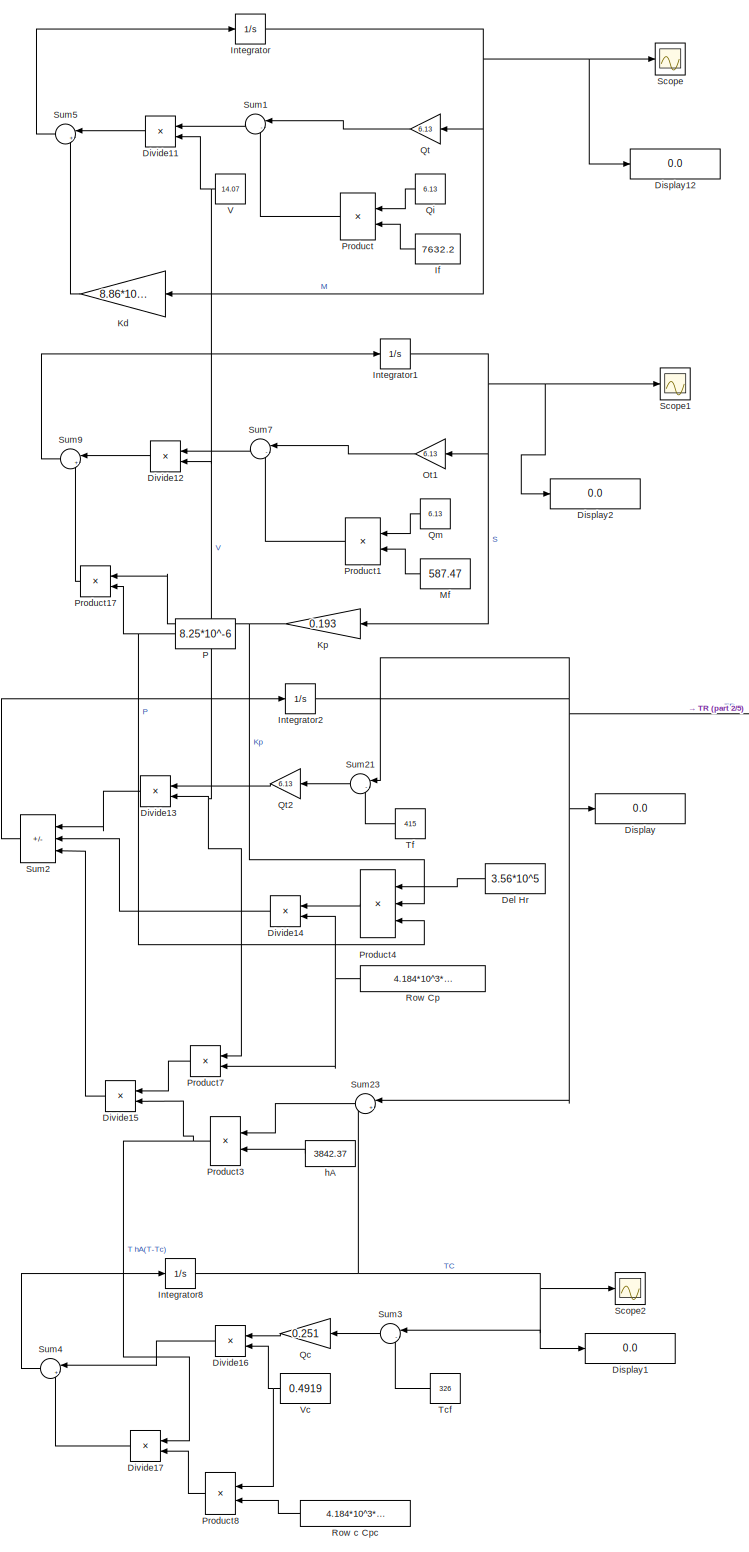
[diagram: root canvas - part 1/5, top center region]
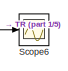
[diagram: root canvas - part 2/5, top right region]
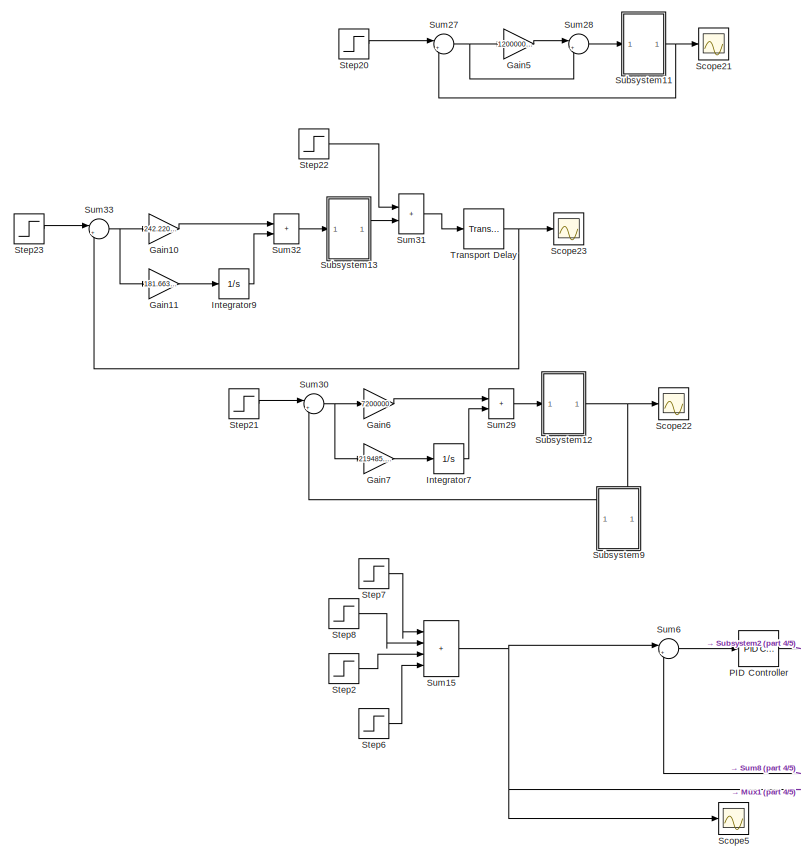
[diagram: root canvas - part 3/5, middle left region]
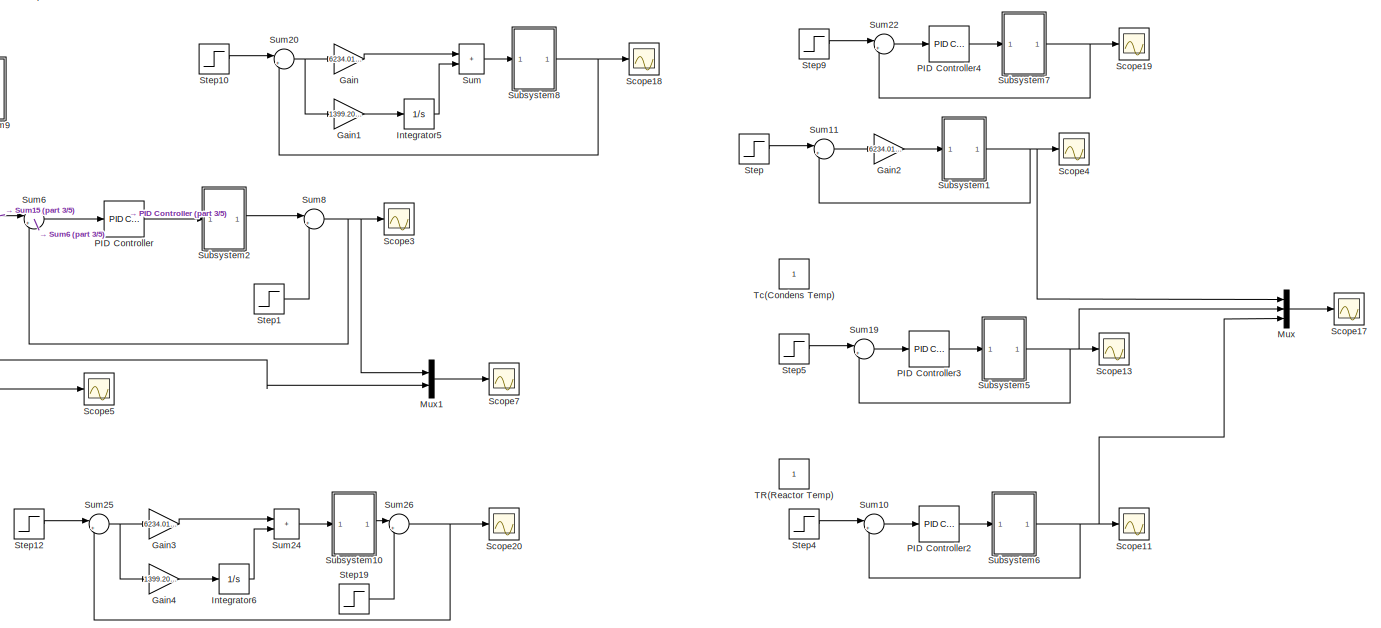
[diagram: root canvas - part 4/5, central region]
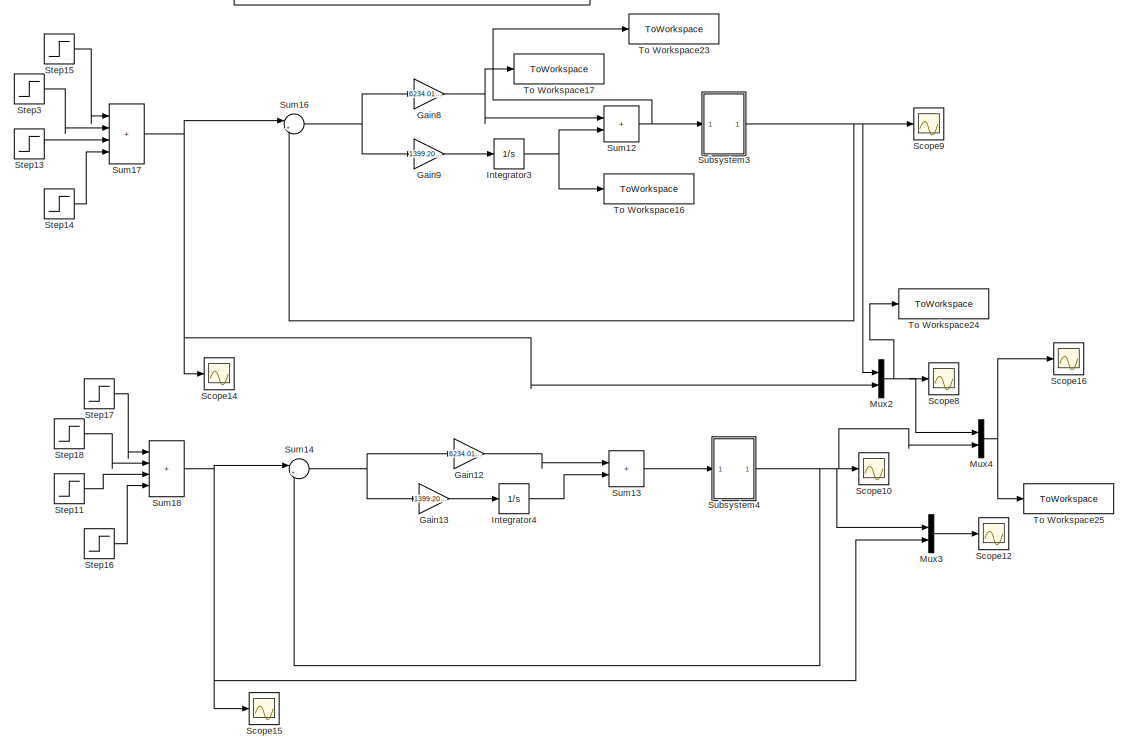
[diagram: root canvas - part 5/5, bottom center region]
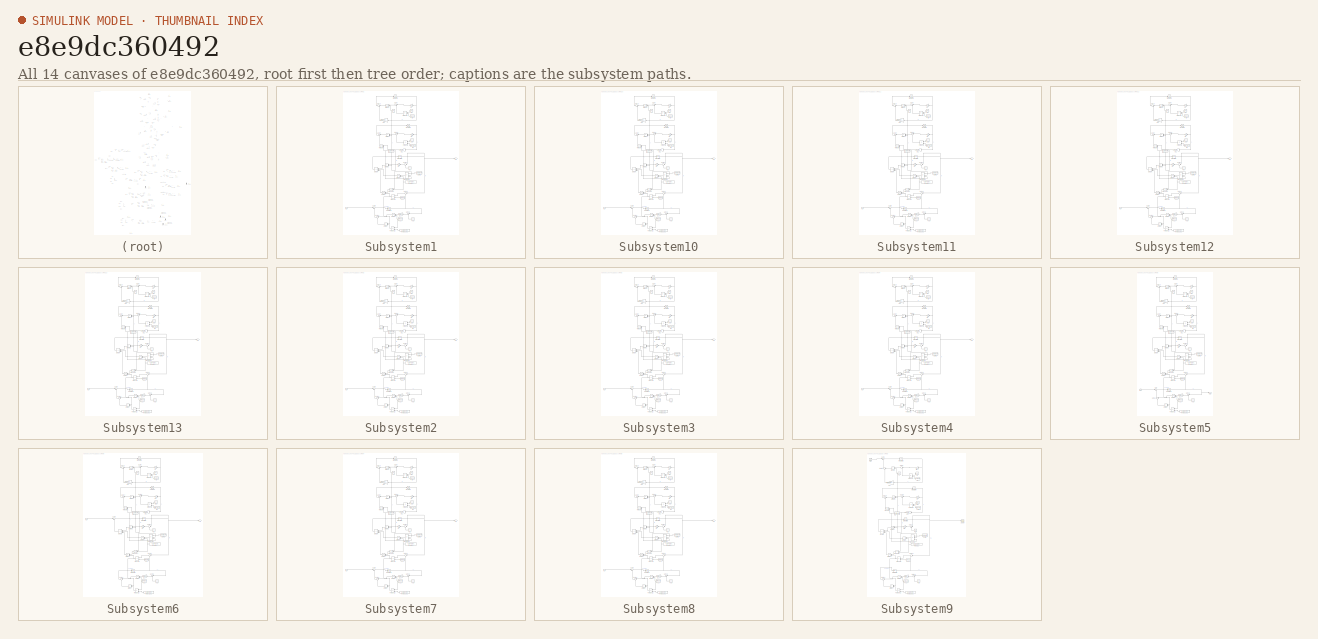
[diagram: thumbnail index - all 14 canvases of the model, root first then tree order]
MODEL slx_e8e9dc360492
KIND model
CONFIG AbsTol = auto
CONFIG EnableMultiTasking = off
CONFIG FixedStep = auto
CONFIG MaxStep = auto
CONFIG MinStep = auto
CONFIG RelTol = 1e-3
CONFIG SampleTimeConstraint = Unconstrained
CONFIG SolverName = VariableStepAuto
CONFIG StartTime = 0.0
CONFIG StopTime = 2500
BLOCK [Constant] Del Hr
  NameLocation = top
  Value = 3.56*10^5
BLOCK [Display] Display
  Decimation = 1
  Ports = [1]
BLOCK [Display] Display1
  Decimation = 1
  Ports = [1]
BLOCK [Display] Display12
  Decimation = 1
  Ports = [1]
BLOCK [Display] Display2
  Decimation = 1
  Ports = [1]
BLOCK [Product] Divide11
  Inputs = */
  NameLocation = top
  Ports = [2, 1]
BLOCK [Product] Divide12
  Inputs = */
  NameLocation = top
  Ports = [2, 1]
BLOCK [Product] Divide13
  Inputs = */
  NameLocation = top
  Ports = [2, 1]
BLOCK [Product] Divide14
  Inputs = */
  NameLocation = top
  Ports = [2, 1]
BLOCK [Product] Divide15
  Inputs = /*
  NameLocation = top
  Ports = [2, 1]
BLOCK [Product] Divide16
  Inputs = */
  NameLocation = top
  Ports = [2, 1]
BLOCK [Product] Divide17
  Inputs = */
  NameLocation = top
  Ports = [2, 1]
BLOCK [Gain] Gain
  Gain = 6234.0157161388
BLOCK [Gain] Gain1
  Gain = 1399.206079598
BLOCK [Gain] Gain10
  Gain = 242.220445259
BLOCK [Gain] Gain11
  Gain = 181.6639660621
BLOCK [Gain] Gain12
  Gain = 6234.0157161388
BLOCK [Gain] Gain13
  Gain = 1399.206079598
BLOCK [Gain] Gain2
  Gain = 6234.0157161388
BLOCK [Gain] Gain3
  Gain = 6234.0157161388
BLOCK [Gain] Gain4
  Gain = 1399.206079598
BLOCK [Gain] Gain5
  Gain = 120000000
BLOCK [Gain] Gain6
  Gain = 7200000
BLOCK [Gain] Gain7
  Gain = 219485.429
BLOCK [Gain] Gain8
  Gain = 6234.0157161388
BLOCK [Gain] Gain9
  Gain = 1399.206079598
BLOCK [Constant] If
  NameLocation = top
  Value = 7632.2
BLOCK [Integrator] Integrator
  Ports = [1, 1]
BLOCK [Integrator] Integrator1
  Ports = [1, 1]
BLOCK [Integrator] Integrator2
  Ports = [1, 1]
BLOCK [Integrator] Integrator3
  Ports = [1, 1]
BLOCK [Integrator] Integrator4
  Ports = [1, 1]
BLOCK [Integrator] Integrator5
  Ports = [1, 1]
BLOCK [Integrator] Integrator6
  Ports = [1, 1]
BLOCK [Integrator] Integrator7
  Ports = [1, 1]
BLOCK [Integrator] Integrator8
  InitialCondition = 326
  Ports = [1, 1]
BLOCK [Integrator] Integrator9
  Ports = [1, 1]
BLOCK [Gain] Kd
  Gain = 8.86*10^-20
  NameLocation = top
BLOCK [Gain] Kp
  Gain = 0.193
  NameLocation = top
BLOCK [Constant] Mf
  NameLocation = top
  Value = 587.47
BLOCK [Mux] Mux
  DisplayOption = bar
  Inputs = 3
  Ports = [3, 1]
BLOCK [Mux] Mux1
  DisplayOption = bar
  Inputs = 2
  Ports = [2, 1]
BLOCK [Mux] Mux2
  DisplayOption = bar
  Inputs = 2
  Ports = [2, 1]
BLOCK [Mux] Mux3
  DisplayOption = bar
  Inputs = 2
  Ports = [2, 1]
BLOCK [Mux] Mux4
  DisplayOption = bar
  Inputs = 2
  Ports = [2, 1]
BLOCK [Gain] Ot1
  Gain = 6.13
  NameLocation = top
BLOCK [Constant] P
  NameLocation = top
  Value = 8.25*10^-6
BLOCK [Reference] PID Controller  REF=pid_lib/PID Controller
  Ports = [1, 1]
  SourceBlock = pid_lib/PID Controller
  SourceProductBaseCode = SL
  SourceType = PID 1dof
BLOCK [Reference] PID Controller2  REF=pid_lib/PID Controller
  Ports = [1, 1]
  SourceBlock = pid_lib/PID Controller
  SourceProductBaseCode = SL
  SourceType = PID 1dof
BLOCK [Reference] PID Controller3  REF=pid_lib/PID Controller
  Ports = [1, 1]
  SourceBlock = pid_lib/PID Controller
  SourceProductBaseCode = SL
  SourceType = PID 1dof
BLOCK [Reference] PID Controller4  REF=pid_lib/PID Controller
  Ports = [1, 1]
  SourceBlock = pid_lib/PID Controller
  SourceProductBaseCode = SL
  SourceType = PID 1dof
BLOCK [Product] Product
  NameLocation = top
  Ports = [2, 1]
BLOCK [Product] Product1
  NameLocation = top
  Ports = [2, 1]
BLOCK [Product] Product17
  NameLocation = top
  Ports = [2, 1]
BLOCK [Product] Product3
  NameLocation = top
  Ports = [2, 1]
BLOCK [Product] Product4
  Inputs = 3
  NameLocation = top
  Ports = [3, 1]
BLOCK [Product] Product7
  NameLocation = top
  Ports = [2, 1]
BLOCK [Product] Product8
  NameLocation = top
  Ports = [2, 1]
BLOCK [Gain] Qc
  Gain = 0.251
  NameLocation = top
BLOCK [Constant] Qi
  NameLocation = top
  Value = 6.13
BLOCK [Constant] Qm
  NameLocation = top
  Value = 6.13
BLOCK [Gain] Qt
  Gain = 6.13
  NameLocation = top
BLOCK [Gain] Qt2
  Gain = 6.13
  NameLocation = top
BLOCK [Constant] Row Cp
  NameLocation = top
  Value = 4.184*10^3*858.085
BLOCK [Constant] Row c Cpc
  NameLocation = top
  Value = 4.184*10^3*858.085
BLOCK [Scope] Scope
  Floating = off
  NumInputPorts = 1
  Ports = [1]
  ScopeSpecificationString = Simulink.scopes.TimeScopeBlockCfg('CurrentConfiguration', extmgr.ConfigurationSet(extmgr.Configuration('Core','General UI',true),extmgr.Configuration('Core','Source UI',true),extmgr.Configuration('Sources','WiredSimulink',true,'DataLoggingVariableName','ScopeData6'),extmgr.Configuration('Visuals','Time Domain',true,'SerializedDisplays',{struct('MinYLimReal','-954.02497','MaxYLimReal','8586.22477',...<+1378ch>
BLOCK [Scope] Scope1
  Floating = off
  NumInputPorts = 1
  Ports = [1]
  ScopeSpecificationString = Simulink.scopes.TimeScopeBlockCfg('CurrentConfiguration', extmgr.ConfigurationSet(extmgr.Configuration('Core','General UI',true),extmgr.Configuration('Core','Source UI',true),extmgr.Configuration('Sources','WiredSimulink',true,'DataLoggingVariableName','ScopeData7'),extmgr.Configuration('Visuals','Time Domain',true,'SerializedDisplays',{struct('MinYLimReal','-73.43348','MaxYLimReal','660.90132','Y...<+1395ch>
BLOCK [Scope] Scope10
  Floating = off
  NumInputPorts = 1
  Ports = [1]
  ScopeSpecificationString = Simulink.scopes.TimeScopeBlockCfg('CurrentConfiguration', extmgr.ConfigurationSet(extmgr.Configuration('Core','General UI',true),extmgr.Configuration('Core','Source UI',true),extmgr.Configuration('Sources','WiredSimulink',true,'DataLoggingVariableName','ScopeData2'),extmgr.Configuration('Visuals','Time Domain',true,'SerializedDisplays',{struct('MinYLimReal','414.37821','MaxYLimReal','420.59593','Y...<+1383ch>
BLOCK [Scope] Scope11
  Floating = off
  NumInputPorts = 1
  Ports = [1]
  ScopeSpecificationString = Simulink.scopes.TimeScopeBlockCfg('CurrentConfiguration', extmgr.ConfigurationSet(extmgr.Configuration('Core','General UI',true),extmgr.Configuration('Core','Source UI',true),extmgr.Configuration('Sources','WiredSimulink',true,'DataLoggingVariableName','ScopeData1'),extmgr.Configuration('Visuals','Time Domain',true,'SerializedDisplays',{struct('MinYLimReal','414.57291','MaxYLimReal','418.84383','Y...<+1383ch>
BLOCK [Scope] Scope12
  Floating = off
  NumInputPorts = 1
  Ports = [1]
  ScopeSpecificationString = Simulink.scopes.TimeScopeBlockCfg('CurrentConfiguration', extmgr.ConfigurationSet(extmgr.Configuration('Core','General UI',true),extmgr.Configuration('Core','Source UI',true),extmgr.Configuration('Sources','WiredSimulink',true,'DataLoggingVariableName','ScopeData5'),extmgr.Configuration('Visuals','Time Domain',true,'SerializedDisplays',{struct('MinYLimReal','-44.59787','MaxYLimReal','401.38084','Y...<+1387ch>
BLOCK [Scope] Scope13
  Floating = off
  NumInputPorts = 1
  Ports = [1]
  ScopeSpecificationString = Simulink.scopes.TimeScopeBlockCfg('CurrentConfiguration', extmgr.ConfigurationSet(extmgr.Configuration('Core','General UI',true),extmgr.Configuration('Core','Source UI',true),extmgr.Configuration('Sources','WiredSimulink',true,'DataLoggingVariableName','ScopeData2'),extmgr.Configuration('Visuals','Time Domain',true,'SerializedDisplays',{struct('MinYLimReal','325.94286','MaxYLimReal','326.51423','Y...<+1383ch>
BLOCK [Scope] Scope14
  Floating = off
  NumInputPorts = 1
  Ports = [1]
  ScopeSpecificationString = Simulink.scopes.TimeScopeBlockCfg('CurrentConfiguration', extmgr.ConfigurationSet(extmgr.Configuration('Core','General UI',true),extmgr.Configuration('Core','Source UI',true),extmgr.Configuration('Sources','WiredSimulink',true,'DataLoggingVariableName','ScopeData9'),extmgr.Configuration('Visuals','Time Domain',true,'SerializedDisplays',{struct('MinYLimReal','419.30142','MaxYLimReal','419.70737','Y...<+1397ch>
BLOCK [Scope] Scope15
  Floating = off
  NumInputPorts = 1
  Ports = [1]
  ScopeSpecificationString = Simulink.scopes.TimeScopeBlockCfg('CurrentConfiguration', extmgr.ConfigurationSet(extmgr.Configuration('Core','General UI',true),extmgr.Configuration('Core','Source UI',true),extmgr.Configuration('Sources','WiredSimulink',true,'DataLoggingVariableName','ScopeData10'),extmgr.Configuration('Visuals','Time Domain',true,'SerializedDisplays',{struct('MinYLimReal','417.75','MaxYLimReal','420.25','YLabel...<+1355ch>
BLOCK [Scope] Scope16
  Floating = off
  NumInputPorts = 1
  Ports = [1]
  ScopeSpecificationString = Simulink.scopes.TimeScopeBlockCfg('CurrentConfiguration', extmgr.ConfigurationSet(extmgr.Configuration('Core','General UI',true),extmgr.Configuration('Core','Source UI',true),extmgr.Configuration('Sources','WiredSimulink',true,'DataLoggingVariableName','ScopeData11'),extmgr.Configuration('Visuals','Time Domain',true,'SerializedDisplays',{struct('MinYLimReal','-52.39648','MaxYLimReal','471.56831','...<+1430ch>
BLOCK [Scope] Scope17
  Floating = off
  NumInputPorts = 1
  Ports = [1]
  ScopeSpecificationString = Simulink.scopes.TimeScopeBlockCfg('CurrentConfiguration', extmgr.ConfigurationSet(extmgr.Configuration('Core','General UI',true),extmgr.Configuration('Core','Source UI',true),extmgr.Configuration('Sources','WiredSimulink',true,'DataLoggingVariableName','ScopeData3'),extmgr.Configuration('Visuals','Time Domain',true,'SerializedDisplays',{struct('MinYLimReal','314.44802','MaxYLimReal','429.96783','Y...<+1409ch>
BLOCK [Scope] Scope18
  Floating = off
  NumInputPorts = 1
  Ports = [1]
  ScopeSpecificationString = Simulink.scopes.TimeScopeBlockCfg('CurrentConfiguration', extmgr.ConfigurationSet(extmgr.Configuration('Core','General UI',true),extmgr.Configuration('Core','Source UI',true),extmgr.Configuration('Sources','WiredSimulink',true,'DataLoggingVariableName','ScopeData2'),extmgr.Configuration('Visuals','Time Domain',true,'SerializedDisplays',{struct('MinYLimReal','414.62344','MaxYLimReal','418.38885','Y...<+1383ch>
BLOCK [Scope] Scope19
  Floating = off
  NumInputPorts = 1
  Ports = [1]
  ScopeSpecificationString = Simulink.scopes.TimeScopeBlockCfg('CurrentConfiguration', extmgr.ConfigurationSet(extmgr.Configuration('Core','General UI',true),extmgr.Configuration('Core','Source UI',true),extmgr.Configuration('Sources','WiredSimulink',true,'DataLoggingVariableName','ScopeData1'),extmgr.Configuration('Visuals','Time Domain',true,'SerializedDisplays',{struct('MinYLimReal','414.25299','MaxYLimReal','421.72307','Y...<+1383ch>
BLOCK [Scope] Scope2
  Floating = off
  NumInputPorts = 1
  Ports = [1]
  ScopeSpecificationString = Simulink.scopes.TimeScopeBlockCfg('CurrentConfiguration', extmgr.ConfigurationSet(extmgr.Configuration('Core','General UI',true,'FigureColor',[1 1 1]),extmgr.Configuration('Core','Source UI',true),extmgr.Configuration('Sources','WiredSimulink',true,'DataLoggingVariableName','ScopeData8'),extmgr.Configuration('Visuals','Time Domain',true,'SerializedDisplays',{struct('MinYLimReal','325.42811','MaxYL...<+1557ch>
BLOCK [Scope] Scope20
  Floating = off
  NumInputPorts = 1
  Ports = [1]
  ScopeSpecificationString = Simulink.scopes.TimeScopeBlockCfg('CurrentConfiguration', extmgr.ConfigurationSet(extmgr.Configuration('Core','General UI',true),extmgr.Configuration('Core','Source UI',true),extmgr.Configuration('Sources','WiredSimulink',true,'DataLoggingVariableName','ScopeData4'),extmgr.Configuration('Visuals','Time Domain',true,'SerializedDisplays',{struct('MinYLimReal','414.59369','MaxYLimReal','418.58987','Y...<+1378ch>
BLOCK [Scope] Scope21
  Floating = off
  NumInputPorts = 1
  Ports = [1]
  ScopeSpecificationString = Simulink.scopes.TimeScopeBlockCfg('CurrentConfiguration', extmgr.ConfigurationSet(extmgr.Configuration('Core','General UI',true),extmgr.Configuration('Core','Source UI',true),extmgr.Configuration('Sources','WiredSimulink',true,'DataLoggingVariableName','ScopeData1'),extmgr.Configuration('Visuals','Time Domain',true,'SerializedDisplays',{struct('MinYLimReal','414.25584','MaxYLimReal','421.69742','Y...<+1713ch>
BLOCK [Scope] Scope22
  Floating = off
  NumInputPorts = 1
  Ports = [1]
  ScopeSpecificationString = Simulink.scopes.TimeScopeBlockCfg('CurrentConfiguration', extmgr.ConfigurationSet(extmgr.Configuration('Core','General UI',true),extmgr.Configuration('Core','Source UI',true),extmgr.Configuration('Sources','WiredSimulink',true,'DataLoggingVariableName','ScopeData2'),extmgr.Configuration('Visuals','Time Domain',true,'SerializedDisplays',{struct('MinYLimReal','414.27267','MaxYLimReal','421.54598','Y...<+1384ch>
BLOCK [Scope] Scope23
  Floating = off
  NumInputPorts = 1
  Ports = [1]
  ScopeSpecificationString = Simulink.scopes.TimeScopeBlockCfg('CurrentConfiguration', extmgr.ConfigurationSet(extmgr.Configuration('Core','General UI',true,'FigureColor',[1 1 1]),extmgr.Configuration('Core','Source UI',true),extmgr.Configuration('Sources','WiredSimulink',true,'DataLoggingVariableName','ScopeData1'),extmgr.Configuration('Visuals','Time Domain',true,'SerializedDisplays',{struct('MinYLimReal','413.8806','MaxYLi...<+1587ch>
BLOCK [Scope] Scope3
  Floating = off
  NumInputPorts = 1
  Ports = [1]
  ScopeSpecificationString = Simulink.scopes.TimeScopeBlockCfg('CurrentConfiguration', extmgr.ConfigurationSet(extmgr.Configuration('Core','General UI',true),extmgr.Configuration('Core','Source UI',true),extmgr.Configuration('Sources','WiredSimulink',true),extmgr.Configuration('Visuals','Time Domain',true,'SerializedDisplays',{struct('MinYLimReal','414.22538','MaxYLimReal','419.81247','YLabelReal','','MinYLimMag','414.22538',...<+1338ch>
BLOCK [Scope] Scope4
  Floating = off
  NumInputPorts = 1
  Ports = [1]
  ScopeSpecificationString = Simulink.scopes.TimeScopeBlockCfg('CurrentConfiguration', extmgr.ConfigurationSet(extmgr.Configuration('Core','General UI',true),extmgr.Configuration('Core','Source UI',true),extmgr.Configuration('Sources','WiredSimulink',true,'DataLoggingVariableName','ScopeData1','SampleTime','0.001'),extmgr.Configuration('Visuals','Time Domain',true,'SerializedDisplays',{struct('MinYLimReal','414.72047','MaxYLi...<+1400ch>
BLOCK [Scope] Scope5
  Floating = off
  NumInputPorts = 1
  Ports = [1]
  ScopeSpecificationString = Simulink.scopes.TimeScopeBlockCfg('CurrentConfiguration', extmgr.ConfigurationSet(extmgr.Configuration('Core','General UI',true),extmgr.Configuration('Core','Source UI',true),extmgr.Configuration('Sources','WiredSimulink',true,'DataLoggingVariableName','ScopeData1'),extmgr.Configuration('Visuals','Time Domain',true,'SerializedDisplays',{struct('MinYLimReal','414.5','MaxYLimReal','419.5','YLabelRea...<+1346ch>
BLOCK [Scope] Scope6
  Floating = off
  NumInputPorts = 1
  Ports = [1]
  ScopeSpecificationString = Simulink.scopes.TimeScopeBlockCfg('CurrentConfiguration', extmgr.ConfigurationSet(extmgr.Configuration('Core','General UI',true),extmgr.Configuration('Core','Source UI',true),extmgr.Configuration('Sources','WiredSimulink',true,'DataLoggingVariableName','ScopeData3'),extmgr.Configuration('Visuals','Time Domain',true,'SerializedDisplays',{struct('MinYLimReal','-51.87309','MaxYLimReal','466.85782','Y...<+1446ch>
BLOCK [Scope] Scope7
  Floating = off
  NumInputPorts = 1
  Ports = [1]
  ScopeSpecificationString = Simulink.scopes.TimeScopeBlockCfg('CurrentConfiguration', extmgr.ConfigurationSet(extmgr.Configuration('Core','General UI',true),extmgr.Configuration('Core','Source UI',true),extmgr.Configuration('Sources','WiredSimulink',true,'DataLoggingVariableName','ScopeData2'),extmgr.Configuration('Visuals','Time Domain',true,'SerializedDisplays',{struct('MinYLimReal','414.24157','MaxYLimReal','419.7891','YL...<+1381ch>
BLOCK [Scope] Scope8
  Floating = off
  NumInputPorts = 1
  Ports = [1]
  ScopeSpecificationString = Simulink.scopes.TimeScopeBlockCfg('CurrentConfiguration', extmgr.ConfigurationSet(extmgr.Configuration('Core','General UI',true),extmgr.Configuration('Core','Source UI',true),extmgr.Configuration('Sources','WiredSimulink',true,'DataLoggingVariableName','ScopeData3'),extmgr.Configuration('Visuals','Time Domain',true,'SerializedDisplays',{struct('MinYLimReal','413.94244','MaxYLimReal','421.02557','Y...<+1391ch>
BLOCK [Scope] Scope9
  Floating = off
  NumInputPorts = 1
  Ports = [1]
  ScopeSpecificationString = Simulink.scopes.TimeScopeBlockCfg('CurrentConfiguration', extmgr.ConfigurationSet(extmgr.Configuration('Core','General UI',true),extmgr.Configuration('Core','Source UI',true),extmgr.Configuration('Sources','WiredSimulink',true,'DataLoggingVariableName','ScopeData12'),extmgr.Configuration('Visuals','Time Domain',true,'SerializedDisplays',{struct('MinYLimReal','413.94244','MaxYLimReal','421.02557','...<+1409ch>
BLOCK [Step] Step
  After = 418
  Before = 415
  SampleTime = 0
  Time = 0
BLOCK [Step] Step1
  After = -1
  SampleTime = 0
  Time = 20
BLOCK [Step] Step10
  After = 418
  Before = 415
  SampleTime = 0
  Time = 0
BLOCK [Step] Step11
  After = 1.5
  SampleTime = 0
  Time = 4
BLOCK [Step] Step12
  After = 418
  Before = 415
  SampleTime = 0
  Time = 10
BLOCK [Step] Step13
  SampleTime = 0
  Time = 20
BLOCK [Step] Step14
  SampleTime = 0
  Time = 10
BLOCK [Step] Step15
  After = 419
  Before = 415
  SampleTime = 0
  Time = 10
BLOCK [Step] Step16
  After = 0.5
  SampleTime = 0
  Time = 6
BLOCK [Step] Step17
  After = 418
  Before = 415
  SampleTime = 0
  Time = 0
BLOCK [Step] Step18
  After = -1
  SampleTime = 0
  Time = 20
BLOCK [Step] Step19
  After = -1
  SampleTime = 0
  Time = 20
BLOCK [Step] Step2
  After = 0
  SampleTime = 0
  Time = 20
BLOCK [Step] Step20
  After = 418
  Before = 415
  SampleTime = 0
  Time = 0
BLOCK [Step] Step21
  After = 418
  Before = 415
  SampleTime = 0
  Time = 0
BLOCK [Step] Step22
  After = -2
  SampleTime = 0
  Time = 400
BLOCK [Step] Step23
  After = 418
  Before = 415
  SampleTime = 0
  Time = 0
BLOCK [Step] Step3
  After = -6
  SampleTime = 0
  Time = 20
BLOCK [Step] Step4
  After = 418
  Before = 415
  SampleTime = 0
  Time = 0
BLOCK [Step] Step5
  After = 326.4
  Before = 326
  SampleTime = 0
BLOCK [Step] Step6
  SampleTime = 0
  Time = 10
BLOCK [Step] Step7
  After = 418
  Before = 415
  SampleTime = 0
  Time = 10
BLOCK [Step] Step8
  After = -4
  SampleTime = 0
  Time = 20
BLOCK [Step] Step9
  After = 418
  Before = 415
  SampleTime = 0
  Time = 0
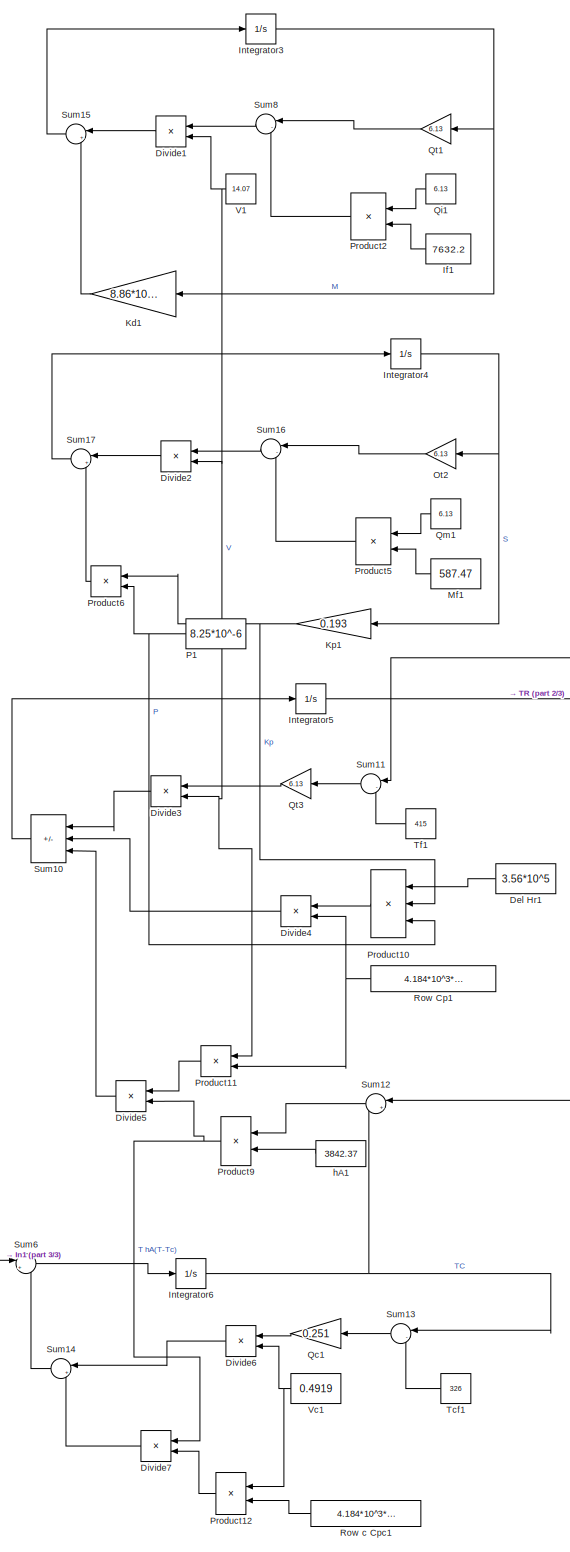
[diagram: Subsystem1 - part 1/3, center side, full height]
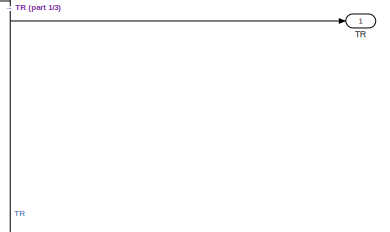
[diagram: Subsystem1 - part 2/3, middle right region]
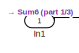
[diagram: Subsystem1 - part 3/3, bottom left region]
BLOCK [SubSystem] Subsystem1
  Ports = [1, 1]
  RequestExecContextInheritance = off
BLOCK [Constant] Subsystem1/Del Hr1
  NameLocation = top
  Value = 3.56*10^5
BLOCK [Product] Subsystem1/Divide1
  Inputs = */
  NameLocation = top
  Ports = [2, 1]
BLOCK [Product] Subsystem1/Divide2
  Inputs = */
  NameLocation = top
  Ports = [2, 1]
BLOCK [Product] Subsystem1/Divide3
  Inputs = */
  NameLocation = top
  Ports = [2, 1]
BLOCK [Product] Subsystem1/Divide4
  Inputs = */
  NameLocation = top
  Ports = [2, 1]
BLOCK [Product] Subsystem1/Divide5
  Inputs = /*
  NameLocation = top
  Ports = [2, 1]
BLOCK [Product] Subsystem1/Divide6
  Inputs = */
  NameLocation = top
  Ports = [2, 1]
BLOCK [Product] Subsystem1/Divide7
  Inputs = */
  NameLocation = top
  Ports = [2, 1]
BLOCK [Constant] Subsystem1/If1
  NameLocation = top
  Value = 7632.2
BLOCK [Inport] Subsystem1/In1
BLOCK [Integrator] Subsystem1/Integrator3
  Ports = [1, 1]
BLOCK [Integrator] Subsystem1/Integrator4
  Ports = [1, 1]
BLOCK [Integrator] Subsystem1/Integrator5
  InitialCondition = 415
  Ports = [1, 1]
BLOCK [Integrator] Subsystem1/Integrator6
  InitialCondition = 326
  Ports = [1, 1]
BLOCK [Gain] Subsystem1/Kd1
  Gain = 8.86*10^-20
  NameLocation = top
BLOCK [Gain] Subsystem1/Kp1
  Gain = 0.193
  NameLocation = top
BLOCK [Constant] Subsystem1/Mf1
  NameLocation = top
  Value = 587.47
BLOCK [Gain] Subsystem1/Ot2
  Gain = 6.13
  NameLocation = top
BLOCK [Constant] Subsystem1/P1
  NameLocation = top
  Value = 8.25*10^-6
BLOCK [Product] Subsystem1/Product10
  Inputs = 3
  NameLocation = top
  Ports = [3, 1]
BLOCK [Product] Subsystem1/Product11
  NameLocation = top
  Ports = [2, 1]
BLOCK [Product] Subsystem1/Product12
  NameLocation = top
  Ports = [2, 1]
BLOCK [Product] Subsystem1/Product2
  NameLocation = top
  Ports = [2, 1]
BLOCK [Product] Subsystem1/Product5
  NameLocation = top
  Ports = [2, 1]
BLOCK [Product] Subsystem1/Product6
  NameLocation = top
  Ports = [2, 1]
BLOCK [Product] Subsystem1/Product9
  NameLocation = top
  Ports = [2, 1]
BLOCK [Gain] Subsystem1/Qc1
  Gain = 0.251
  NameLocation = top
BLOCK [Constant] Subsystem1/Qi1
  NameLocation = top
  Value = 6.13
BLOCK [Constant] Subsystem1/Qm1
  NameLocation = top
  Value = 6.13
BLOCK [Gain] Subsystem1/Qt1
  Gain = 6.13
  NameLocation = top
BLOCK [Gain] Subsystem1/Qt3
  Gain = 6.13
  NameLocation = top
BLOCK [Constant] Subsystem1/Row Cp1
  NameLocation = top
  Value = 4.184*10^3*858.085
BLOCK [Constant] Subsystem1/Row c Cpc1
  NameLocation = top
  Value = 4.184*10^3*858.085
BLOCK [Sum] Subsystem1/Sum10
  IconShape = rectangular
  Inputs = |++-
  NameLocation = top
  Ports = [3, 1]
BLOCK [Sum] Subsystem1/Sum11
  Inputs = |-+
  NameLocation = top
  Ports = [2, 1]
BLOCK [Sum] Subsystem1/Sum12
  Inputs = |+-
  NameLocation = top
  Ports = [2, 1]
BLOCK [Sum] Subsystem1/Sum13
  Inputs = |-+
  NameLocation = top
  Ports = [2, 1]
BLOCK [Sum] Subsystem1/Sum14
  Inputs = |++
  NameLocation = top
  Ports = [2, 1]
BLOCK [Sum] Subsystem1/Sum15
  Inputs = |+-
  NameLocation = top
  Ports = [2, 1]
BLOCK [Sum] Subsystem1/Sum16
  Inputs = |-+
  NameLocation = top
  Ports = [2, 1]
BLOCK [Sum] Subsystem1/Sum17
  Inputs = |+-
  NameLocation = top
  Ports = [2, 1]
BLOCK [Sum] Subsystem1/Sum6
  Inputs = |++
  Ports = [2, 1]
BLOCK [Sum] Subsystem1/Sum8
  Inputs = |-+
  NameLocation = top
  Ports = [2, 1]
BLOCK [Outport] Subsystem1/TR
BLOCK [Constant] Subsystem1/Tcf1
  NameLocation = top
  Value = 326
BLOCK [Constant] Subsystem1/Tf1
  NameLocation = top
  Value = 415
BLOCK [Constant] Subsystem1/V1
  NameLocation = top
  Value = 14.07
BLOCK [Constant] Subsystem1/Vc1
  NameLocation = top
  Value = 0.4919
BLOCK [Constant] Subsystem1/hA1
  NameLocation = top
  Value = 3842.37
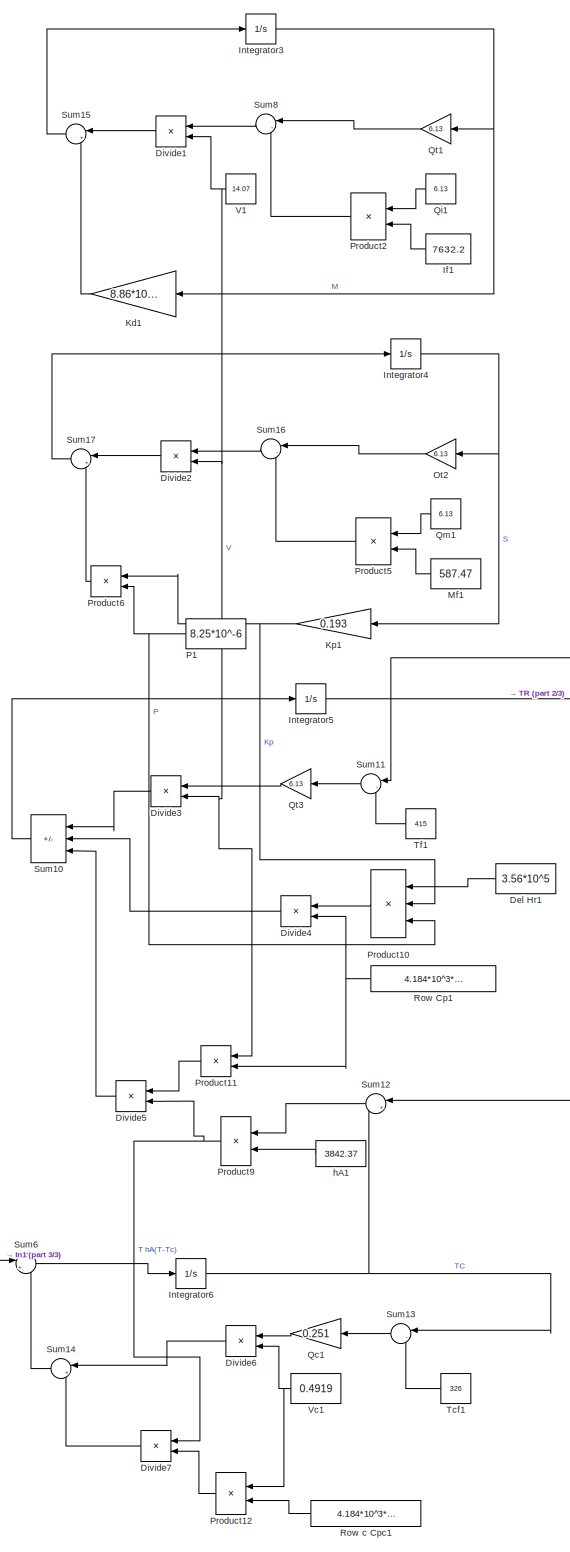
[diagram: Subsystem10 - part 1/3, center side, full height]
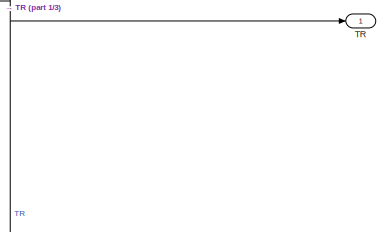
[diagram: Subsystem10 - part 2/3, middle right region]
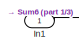
[diagram: Subsystem10 - part 3/3, bottom left region]
BLOCK [SubSystem] Subsystem10
  Ports = [1, 1]
  RequestExecContextInheritance = off
BLOCK [Constant] Subsystem10/Del Hr1
  NameLocation = top
  Value = 3.56*10^5
BLOCK [Product] Subsystem10/Divide1
  Inputs = */
  NameLocation = top
  Ports = [2, 1]
BLOCK [Product] Subsystem10/Divide2
  Inputs = */
  NameLocation = top
  Ports = [2, 1]
BLOCK [Product] Subsystem10/Divide3
  Inputs = */
  NameLocation = top
  Ports = [2, 1]
BLOCK [Product] Subsystem10/Divide4
  Inputs = */
  NameLocation = top
  Ports = [2, 1]
BLOCK [Product] Subsystem10/Divide5
  Inputs = /*
  NameLocation = top
  Ports = [2, 1]
BLOCK [Product] Subsystem10/Divide6
  Inputs = */
  NameLocation = top
  Ports = [2, 1]
BLOCK [Product] Subsystem10/Divide7
  Inputs = */
  NameLocation = top
  Ports = [2, 1]
BLOCK [Constant] Subsystem10/If1
  NameLocation = top
  Value = 7632.2
BLOCK [Inport] Subsystem10/In1
BLOCK [Integrator] Subsystem10/Integrator3
  InitialCondition = 7632.2
  Ports = [1, 1]
BLOCK [Integrator] Subsystem10/Integrator4
  InitialCondition = 587.47
  Ports = [1, 1]
BLOCK [Integrator] Subsystem10/Integrator5
  InitialCondition = 415
  Ports = [1, 1]
BLOCK [Integrator] Subsystem10/Integrator6
  InitialCondition = 326
  Ports = [1, 1]
BLOCK [Gain] Subsystem10/Kd1
  Gain = 8.86*10^-20
  NameLocation = top
BLOCK [Gain] Subsystem10/Kp1
  Gain = 0.193
  NameLocation = top
BLOCK [Constant] Subsystem10/Mf1
  NameLocation = top
  Value = 587.47
BLOCK [Gain] Subsystem10/Ot2
  Gain = 6.13
  NameLocation = top
BLOCK [Constant] Subsystem10/P1
  NameLocation = top
  Value = 8.25*10^-6
BLOCK [Product] Subsystem10/Product10
  Inputs = 3
  NameLocation = top
  Ports = [3, 1]
BLOCK [Product] Subsystem10/Product11
  NameLocation = top
  Ports = [2, 1]
BLOCK [Product] Subsystem10/Product12
  NameLocation = top
  Ports = [2, 1]
BLOCK [Product] Subsystem10/Product2
  NameLocation = top
  Ports = [2, 1]
BLOCK [Product] Subsystem10/Product5
  NameLocation = top
  Ports = [2, 1]
BLOCK [Product] Subsystem10/Product6
  NameLocation = top
  Ports = [2, 1]
BLOCK [Product] Subsystem10/Product9
  NameLocation = top
  Ports = [2, 1]
BLOCK [Gain] Subsystem10/Qc1
  Gain = 0.251
  NameLocation = top
BLOCK [Constant] Subsystem10/Qi1
  NameLocation = top
  Value = 6.13
BLOCK [Constant] Subsystem10/Qm1
  NameLocation = top
  Value = 6.13
BLOCK [Gain] Subsystem10/Qt1
  Gain = 6.13
  NameLocation = top
BLOCK [Gain] Subsystem10/Qt3
  Gain = 6.13
  NameLocation = top
BLOCK [Constant] Subsystem10/Row Cp1
  NameLocation = top
  Value = 4.184*10^3*858.085
BLOCK [Constant] Subsystem10/Row c Cpc1
  NameLocation = top
  Value = 4.184*10^3*858.085
BLOCK [Sum] Subsystem10/Sum10
  IconShape = rectangular
  Inputs = |++-
  NameLocation = top
  Ports = [3, 1]
BLOCK [Sum] Subsystem10/Sum11
  Inputs = |-+
  NameLocation = top
  Ports = [2, 1]
BLOCK [Sum] Subsystem10/Sum12
  Inputs = |+-
  NameLocation = top
  Ports = [2, 1]
BLOCK [Sum] Subsystem10/Sum13
  Inputs = |-+
  NameLocation = top
  Ports = [2, 1]
BLOCK [Sum] Subsystem10/Sum14
  Inputs = |++
  NameLocation = top
  Ports = [2, 1]
BLOCK [Sum] Subsystem10/Sum15
  Inputs = |+-
  NameLocation = top
  Ports = [2, 1]
BLOCK [Sum] Subsystem10/Sum16
  Inputs = |-+
  NameLocation = top
  Ports = [2, 1]
BLOCK [Sum] Subsystem10/Sum17
  Inputs = |+-
  NameLocation = top
  Ports = [2, 1]
BLOCK [Sum] Subsystem10/Sum6
  Inputs = |++
  Ports = [2, 1]
BLOCK [Sum] Subsystem10/Sum8
  Inputs = |-+
  NameLocation = top
  Ports = [2, 1]
BLOCK [Outport] Subsystem10/TR
BLOCK [Constant] Subsystem10/Tcf1
  NameLocation = top
  Value = 326
BLOCK [Constant] Subsystem10/Tf1
  NameLocation = top
  Value = 415
BLOCK [Constant] Subsystem10/V1
  NameLocation = top
  Value = 14.07
BLOCK [Constant] Subsystem10/Vc1
  NameLocation = top
  Value = 0.4919
BLOCK [Constant] Subsystem10/hA1
  NameLocation = top
  Value = 3842.37
BLOCK [SubSystem] Subsystem11
  Ports = [1, 1]
  RequestExecContextInheritance = off
BLOCK [Constant] Subsystem11/Del Hr1
  NameLocation = top
  Value = 3.56*10^5
BLOCK [Product] Subsystem11/Divide1
  Inputs = */
  NameLocation = top
  Ports = [2, 1]
BLOCK [Product] Subsystem11/Divide2
  Inputs = */
  NameLocation = top
  Ports = [2, 1]
BLOCK [Product] Subsystem11/Divide3
  Inputs = */
  NameLocation = top
  Ports = [2, 1]
BLOCK [Product] Subsystem11/Divide4
  Inputs = */
  NameLocation = top
  Ports = [2, 1]
BLOCK [Product] Subsystem11/Divide5
  Inputs = /*
  NameLocation = top
  Ports = [2, 1]
BLOCK [Product] Subsystem11/Divide6
  Inputs = */
  NameLocation = top
  Ports = [2, 1]
BLOCK [Product] Subsystem11/Divide7
  Inputs = */
  NameLocation = top
  Ports = [2, 1]
BLOCK [Constant] Subsystem11/If1
  NameLocation = top
  Value = 7632.2
BLOCK [Inport] Subsystem11/In1
BLOCK [Integrator] Subsystem11/Integrator3
  Ports = [1, 1]
BLOCK [Integrator] Subsystem11/Integrator4
  Ports = [1, 1]
BLOCK [Integrator] Subsystem11/Integrator5
  InitialCondition = 415
  Ports = [1, 1]
BLOCK [Integrator] Subsystem11/Integrator6
  InitialCondition = 326
  Ports = [1, 1]
BLOCK [Gain] Subsystem11/Kd1
  Gain = 8.86*10^-20
  NameLocation = top
BLOCK [Gain] Subsystem11/Kp1
  Gain = 0.193
  NameLocation = top
BLOCK [Constant] Subsystem11/Mf1
  NameLocation = top
  Value = 587.47
BLOCK [Gain] Subsystem11/Ot2
  Gain = 6.13
  NameLocation = top
BLOCK [Constant] Subsystem11/P1
  NameLocation = top
  Value = 8.25*10^-6
BLOCK [Product] Subsystem11/Product10
  Inputs = 3
  NameLocation = top
  Ports = [3, 1]
BLOCK [Product] Subsystem11/Product11
  NameLocation = top
  Ports = [2, 1]
BLOCK [Product] Subsystem11/Product12
  NameLocation = top
  Ports = [2, 1]
BLOCK [Product] Subsystem11/Product2
  NameLocation = top
  Ports = [2, 1]
BLOCK [Product] Subsystem11/Product5
  NameLocation = top
  Ports = [2, 1]
BLOCK [Product] Subsystem11/Product6
  NameLocation = top
  Ports = [2, 1]
BLOCK [Product] Subsystem11/Product9
  NameLocation = top
  Ports = [2, 1]
BLOCK [Gain] Subsystem11/Qc1
  Gain = 0.251
  NameLocation = top
BLOCK [Constant] Subsystem11/Qi1
  NameLocation = top
  Value = 6.13
BLOCK [Constant] Subsystem11/Qm1
  NameLocation = top
  Value = 6.13
BLOCK [Gain] Subsystem11/Qt1
  Gain = 6.13
  NameLocation = top
BLOCK [Gain] Subsystem11/Qt3
  Gain = 6.13
  NameLocation = top
BLOCK [Constant] Subsystem11/Row Cp1
  NameLocation = top
  Value = 4.184*10^3*858.085
BLOCK [Constant] Subsystem11/Row c Cpc1
  NameLocation = top
  Value = 4.184*10^3*858.085
BLOCK [Sum] Subsystem11/Sum10
  IconShape = rectangular
  Inputs = |++-
  NameLocation = top
  Ports = [3, 1]
BLOCK [Sum] Subsystem11/Sum11
  Inputs = |-+
  NameLocation = top
  Ports = [2, 1]
BLOCK [Sum] Subsystem11/Sum12
  Inputs = |+-
  NameLocation = top
  Ports = [2, 1]
BLOCK [Sum] Subsystem11/Sum13
  Inputs = |-+
  NameLocation = top
  Ports = [2, 1]
BLOCK [Sum] Subsystem11/Sum14
  Inputs = |++
  NameLocation = top
  Ports = [2, 1]
BLOCK [Sum] Subsystem11/Sum15
  Inputs = |+-
  NameLocation = top
  Ports = [2, 1]
BLOCK [Sum] Subsystem11/Sum16
  Inputs = |-+
  NameLocation = top
  Ports = [2, 1]
BLOCK [Sum] Subsystem11/Sum17
  Inputs = |+-
  NameLocation = top
  Ports = [2, 1]
BLOCK [Sum] Subsystem11/Sum6
  Inputs = |++
  Ports = [2, 1]
BLOCK [Sum] Subsystem11/Sum8
  Inputs = |-+
  NameLocation = top
  Ports = [2, 1]
BLOCK [Outport] Subsystem11/TR
BLOCK [Constant] Subsystem11/Tcf1
  NameLocation = top
  Value = 326
BLOCK [Constant] Subsystem11/Tf1
  NameLocation = top
  Value = 415
BLOCK [Constant] Subsystem11/V1
  NameLocation = top
  Value = 14.07
BLOCK [Constant] Subsystem11/Vc1
  NameLocation = top
  Value = 0.4919
BLOCK [Constant] Subsystem11/hA1
  NameLocation = top
  Value = 3842.37
BLOCK [SubSystem] Subsystem12
  Ports = [1, 1]
  RequestExecContextInheritance = off
BLOCK [Constant] Subsystem12/Del Hr1
  NameLocation = top
  Value = 3.56*10^5
BLOCK [Product] Subsystem12/Divide1
  Inputs = */
  NameLocation = top
  Ports = [2, 1]
BLOCK [Product] Subsystem12/Divide2
  Inputs = */
  NameLocation = top
  Ports = [2, 1]
BLOCK [Product] Subsystem12/Divide3
  Inputs = */
  NameLocation = top
  Ports = [2, 1]
BLOCK [Product] Subsystem12/Divide4
  Inputs = */
  NameLocation = top
  Ports = [2, 1]
BLOCK [Product] Subsystem12/Divide5
  Inputs = /*
  NameLocation = top
  Ports = [2, 1]
BLOCK [Product] Subsystem12/Divide6
  Inputs = */
  NameLocation = top
  Ports = [2, 1]
BLOCK [Product] Subsystem12/Divide7
  Inputs = */
  NameLocation = top
  Ports = [2, 1]
BLOCK [Constant] Subsystem12/If1
  NameLocation = top
  Value = 7632.2
BLOCK [Inport] Subsystem12/In1
BLOCK [Integrator] Subsystem12/Integrator3
  InitialCondition = 7632.2
  Ports = [1, 1]
BLOCK [Integrator] Subsystem12/Integrator4
  InitialCondition = 587.47
  Ports = [1, 1]
BLOCK [Integrator] Subsystem12/Integrator5
  InitialCondition = 415
  Ports = [1, 1]
BLOCK [Integrator] Subsystem12/Integrator6
  InitialCondition = 326
  Ports = [1, 1]
BLOCK [Gain] Subsystem12/Kd1
  Gain = 8.86*10^-20
  NameLocation = top
BLOCK [Gain] Subsystem12/Kp1
  Gain = 0.193
  NameLocation = top
BLOCK [Constant] Subsystem12/Mf1
  NameLocation = top
  Value = 587.47
BLOCK [Gain] Subsystem12/Ot2
  Gain = 6.13
  NameLocation = top
BLOCK [Constant] Subsystem12/P1
  NameLocation = top
  Value = 8.25*10^-6
BLOCK [Product] Subsystem12/Product10
  Inputs = 3
  NameLocation = top
  Ports = [3, 1]
BLOCK [Product] Subsystem12/Product11
  NameLocation = top
  Ports = [2, 1]
BLOCK [Product] Subsystem12/Product12
  NameLocation = top
  Ports = [2, 1]
BLOCK [Product] Subsystem12/Product2
  NameLocation = top
  Ports = [2, 1]
BLOCK [Product] Subsystem12/Product5
  NameLocation = top
  Ports = [2, 1]
BLOCK [Product] Subsystem12/Product6
  NameLocation = top
  Ports = [2, 1]
BLOCK [Product] Subsystem12/Product9
  NameLocation = top
  Ports = [2, 1]
BLOCK [Gain] Subsystem12/Qc1
  Gain = 0.251
  NameLocation = top
BLOCK [Constant] Subsystem12/Qi1
  NameLocation = top
  Value = 6.13
BLOCK [Constant] Subsystem12/Qm1
  NameLocation = top
  Value = 6.13
BLOCK [Gain] Subsystem12/Qt1
  Gain = 6.13
  NameLocation = top
BLOCK [Gain] Subsystem12/Qt3
  Gain = 6.13
  NameLocation = top
BLOCK [Constant] Subsystem12/Row Cp1
  NameLocation = top
  Value = 4.184*10^3*858.085
BLOCK [Constant] Subsystem12/Row c Cpc1
  NameLocation = top
  Value = 4.184*10^3*858.085
BLOCK [Sum] Subsystem12/Sum10
  IconShape = rectangular
  Inputs = |++-
  NameLocation = top
  Ports = [3, 1]
BLOCK [Sum] Subsystem12/Sum11
  Inputs = |-+
  NameLocation = top
  Ports = [2, 1]
BLOCK [Sum] Subsystem12/Sum12
  Inputs = |+-
  NameLocation = top
  Ports = [2, 1]
BLOCK [Sum] Subsystem12/Sum13
  Inputs = |-+
  NameLocation = top
  Ports = [2, 1]
BLOCK [Sum] Subsystem12/Sum14
  Inputs = |++
  NameLocation = top
  Ports = [2, 1]
BLOCK [Sum] Subsystem12/Sum15
  Inputs = |+-
  NameLocation = top
  Ports = [2, 1]
BLOCK [Sum] Subsystem12/Sum16
  Inputs = |-+
  NameLocation = top
  Ports = [2, 1]
BLOCK [Sum] Subsystem12/Sum17
  Inputs = |+-
  NameLocation = top
  Ports = [2, 1]
BLOCK [Sum] Subsystem12/Sum6
  Inputs = |++
  Ports = [2, 1]
BLOCK [Sum] Subsystem12/Sum8
  Inputs = |-+
  NameLocation = top
  Ports = [2, 1]
BLOCK [Outport] Subsystem12/TR
BLOCK [Constant] Subsystem12/Tcf1
  NameLocation = top
  Value = 326
BLOCK [Constant] Subsystem12/Tf1
  NameLocation = top
  Value = 415
BLOCK [Constant] Subsystem12/V1
  NameLocation = top
  Value = 14.07
BLOCK [Constant] Subsystem12/Vc1
  NameLocation = top
  Value = 0.4919
BLOCK [Constant] Subsystem12/hA1
  NameLocation = top
  Value = 3842.37
BLOCK [SubSystem] Subsystem13
  Ports = [1, 1]
  RequestExecContextInheritance = off
BLOCK [Constant] Subsystem13/Del Hr1
  NameLocation = top
  Value = 3.56*10^5
BLOCK [Product] Subsystem13/Divide1
  Inputs = */
  NameLocation = top
  Ports = [2, 1]
BLOCK [Product] Subsystem13/Divide2
  Inputs = */
  NameLocation = top
  Ports = [2, 1]
BLOCK [Product] Subsystem13/Divide3
  Inputs = */
  NameLocation = top
  Ports = [2, 1]
BLOCK [Product] Subsystem13/Divide4
  Inputs = */
  NameLocation = top
  Ports = [2, 1]
BLOCK [Product] Subsystem13/Divide5
  Inputs = /*
  NameLocation = top
  Ports = [2, 1]
BLOCK [Product] Subsystem13/Divide6
  Inputs = */
  NameLocation = top
  Ports = [2, 1]
BLOCK [Product] Subsystem13/Divide7
  Inputs = */
  NameLocation = top
  Ports = [2, 1]
BLOCK [Constant] Subsystem13/If1
  NameLocation = top
  Value = 7632.2
BLOCK [Inport] Subsystem13/In1
BLOCK [Integrator] Subsystem13/Integrator3
  InitialCondition = 7632.2
  Ports = [1, 1]
BLOCK [Integrator] Subsystem13/Integrator4
  InitialCondition = 587.47
  Ports = [1, 1]
BLOCK [Integrator] Subsystem13/Integrator5
  InitialCondition = 415
  Ports = [1, 1]
BLOCK [Integrator] Subsystem13/Integrator6
  InitialCondition = 326
  Ports = [1, 1]
BLOCK [Gain] Subsystem13/Kd1
  Gain = 8.86*10^-20
  NameLocation = top
BLOCK [Gain] Subsystem13/Kp1
  Gain = 0.193
  NameLocation = top
BLOCK [Constant] Subsystem13/Mf1
  NameLocation = top
  Value = 587.47
BLOCK [Gain] Subsystem13/Ot2
  Gain = 6.13
  NameLocation = top
BLOCK [Constant] Subsystem13/P1
  NameLocation = top
  Value = 8.25*10^-6
BLOCK [Product] Subsystem13/Product10
  Inputs = 3
  NameLocation = top
  Ports = [3, 1]
BLOCK [Product] Subsystem13/Product11
  NameLocation = top
  Ports = [2, 1]
BLOCK [Product] Subsystem13/Product12
  NameLocation = top
  Ports = [2, 1]
BLOCK [Product] Subsystem13/Product2
  NameLocation = top
  Ports = [2, 1]
BLOCK [Product] Subsystem13/Product5
  NameLocation = top
  Ports = [2, 1]
BLOCK [Product] Subsystem13/Product6
  NameLocation = top
  Ports = [2, 1]
BLOCK [Product] Subsystem13/Product9
  NameLocation = top
  Ports = [2, 1]
BLOCK [Gain] Subsystem13/Qc1
  Gain = 0.251
  NameLocation = top
BLOCK [Constant] Subsystem13/Qi1
  NameLocation = top
  Value = 6.13
BLOCK [Constant] Subsystem13/Qm1
  NameLocation = top
  Value = 6.13
BLOCK [Gain] Subsystem13/Qt1
  Gain = 6.13
  NameLocation = top
BLOCK [Gain] Subsystem13/Qt3
  Gain = 6.13
  NameLocation = top
BLOCK [Constant] Subsystem13/Row Cp1
  NameLocation = top
  Value = 4.184*10^3*858.085
BLOCK [Constant] Subsystem13/Row c Cpc1
  NameLocation = top
  Value = 4.184*10^3*858.085
BLOCK [Sum] Subsystem13/Sum10
  IconShape = rectangular
  Inputs = |++-
  NameLocation = top
  Ports = [3, 1]
BLOCK [Sum] Subsystem13/Sum11
  Inputs = |-+
  NameLocation = top
  Ports = [2, 1]
BLOCK [Sum] Subsystem13/Sum12
  Inputs = |+-
  NameLocation = top
  Ports = [2, 1]
BLOCK [Sum] Subsystem13/Sum13
  Inputs = |-+
  NameLocation = top
  Ports = [2, 1]
BLOCK [Sum] Subsystem13/Sum14
  Inputs = |++
  NameLocation = top
  Ports = [2, 1]
BLOCK [Sum] Subsystem13/Sum15
  Inputs = |+-
  NameLocation = top
  Ports = [2, 1]
BLOCK [Sum] Subsystem13/Sum16
  Inputs = |-+
  NameLocation = top
  Ports = [2, 1]
BLOCK [Sum] Subsystem13/Sum17
  Inputs = |+-
  NameLocation = top
  Ports = [2, 1]
BLOCK [Sum] Subsystem13/Sum6
  Inputs = |++
  Ports = [2, 1]
BLOCK [Sum] Subsystem13/Sum8
  Inputs = |-+
  NameLocation = top
  Ports = [2, 1]
BLOCK [Outport] Subsystem13/TR
BLOCK [Constant] Subsystem13/Tcf1
  NameLocation = top
  Value = 326
BLOCK [Constant] Subsystem13/Tf1
  NameLocation = top
  Value = 415
BLOCK [Constant] Subsystem13/V1
  NameLocation = top
  Value = 14.07
BLOCK [Constant] Subsystem13/Vc1
  NameLocation = top
  Value = 0.4919
BLOCK [Constant] Subsystem13/hA1
  NameLocation = top
  Value = 3842.37
BLOCK [SubSystem] Subsystem2
  Ports = [1, 1]
  RequestExecContextInheritance = off
BLOCK [Constant] Subsystem2/Del Hr1
  NameLocation = top
  Value = 3.56*10^5
BLOCK [Product] Subsystem2/Divide1
  Inputs = */
  NameLocation = top
  Ports = [2, 1]
BLOCK [Product] Subsystem2/Divide2
  Inputs = */
  NameLocation = top
  Ports = [2, 1]
BLOCK [Product] Subsystem2/Divide3
  Inputs = */
  NameLocation = top
  Ports = [2, 1]
BLOCK [Product] Subsystem2/Divide4
  Inputs = */
  NameLocation = top
  Ports = [2, 1]
BLOCK [Product] Subsystem2/Divide5
  Inputs = /*
  NameLocation = top
  Ports = [2, 1]
BLOCK [Product] Subsystem2/Divide6
  Inputs = */
  NameLocation = top
  Ports = [2, 1]
BLOCK [Product] Subsystem2/Divide7
  Inputs = */
  NameLocation = top
  Ports = [2, 1]
BLOCK [Constant] Subsystem2/If1
  NameLocation = top
  Value = 7632.2
BLOCK [Inport] Subsystem2/In1
BLOCK [Integrator] Subsystem2/Integrator3
  Ports = [1, 1]
BLOCK [Integrator] Subsystem2/Integrator4
  Ports = [1, 1]
BLOCK [Integrator] Subsystem2/Integrator5
  InitialCondition = 415
  Ports = [1, 1]
BLOCK [Integrator] Subsystem2/Integrator6
  InitialCondition = 326
  Ports = [1, 1]
BLOCK [Gain] Subsystem2/Kd1
  Gain = 8.86*10^-20
  NameLocation = top
BLOCK [Gain] Subsystem2/Kp1
  Gain = 0.193
  NameLocation = top
BLOCK [Constant] Subsystem2/Mf1
  NameLocation = top
  Value = 587.47
BLOCK [Gain] Subsystem2/Ot2
  Gain = 6.13
  NameLocation = top
BLOCK [Constant] Subsystem2/P1
  NameLocation = top
  Value = 8.25*10^-6
BLOCK [Product] Subsystem2/Product10
  Inputs = 3
  NameLocation = top
  Ports = [3, 1]
BLOCK [Product] Subsystem2/Product11
  NameLocation = top
  Ports = [2, 1]
BLOCK [Product] Subsystem2/Product12
  NameLocation = top
  Ports = [2, 1]
BLOCK [Product] Subsystem2/Product2
  NameLocation = top
  Ports = [2, 1]
BLOCK [Product] Subsystem2/Product5
  NameLocation = top
  Ports = [2, 1]
BLOCK [Product] Subsystem2/Product6
  NameLocation = top
  Ports = [2, 1]
BLOCK [Product] Subsystem2/Product9
  NameLocation = top
  Ports = [2, 1]
BLOCK [Gain] Subsystem2/Qc1
  Gain = 0.251
  NameLocation = top
BLOCK [Constant] Subsystem2/Qi1
  NameLocation = top
  Value = 6.13
BLOCK [Constant] Subsystem2/Qm1
  NameLocation = top
  Value = 6.13
BLOCK [Gain] Subsystem2/Qt1
  Gain = 6.13
  NameLocation = top
BLOCK [Gain] Subsystem2/Qt3
  Gain = 6.13
  NameLocation = top
BLOCK [Constant] Subsystem2/Row Cp1
  NameLocation = top
  Value = 4.184*10^3*858.085
BLOCK [Constant] Subsystem2/Row c Cpc1
  NameLocation = top
  Value = 4.184*10^3*858.085
BLOCK [Sum] Subsystem2/Sum10
  IconShape = rectangular
  Inputs = |++-
  NameLocation = top
  Ports = [3, 1]
BLOCK [Sum] Subsystem2/Sum11
  Inputs = |-+
  NameLocation = top
  Ports = [2, 1]
BLOCK [Sum] Subsystem2/Sum12
  Inputs = |+-
  NameLocation = top
  Ports = [2, 1]
BLOCK [Sum] Subsystem2/Sum13
  Inputs = |-+
  NameLocation = top
  Ports = [2, 1]
BLOCK [Sum] Subsystem2/Sum14
  Inputs = |++
  NameLocation = top
  Ports = [2, 1]
BLOCK [Sum] Subsystem2/Sum15
  Inputs = |+-
  NameLocation = top
  Ports = [2, 1]
BLOCK [Sum] Subsystem2/Sum16
  Inputs = |-+
  NameLocation = top
  Ports = [2, 1]
BLOCK [Sum] Subsystem2/Sum17
  Inputs = |+-
  NameLocation = top
  Ports = [2, 1]
BLOCK [Sum] Subsystem2/Sum6
  Inputs = |++
  Ports = [2, 1]
BLOCK [Sum] Subsystem2/Sum8
  Inputs = |-+
  NameLocation = top
  Ports = [2, 1]
BLOCK [Outport] Subsystem2/TR
BLOCK [Constant] Subsystem2/Tcf1
  NameLocation = top
  Value = 326
BLOCK [Constant] Subsystem2/Tf1
  NameLocation = top
  Value = 415
BLOCK [Constant] Subsystem2/V1
  NameLocation = top
  Value = 14.07
BLOCK [Constant] Subsystem2/Vc1
  NameLocation = top
  Value = 0.4919
BLOCK [Constant] Subsystem2/hA1
  NameLocation = top
  Value = 3842.37
BLOCK [SubSystem] Subsystem3
  Ports = [1, 1]
  RequestExecContextInheritance = off
BLOCK [Constant] Subsystem3/Del Hr1
  NameLocation = top
  Value = 3.56*10^5
BLOCK [Product] Subsystem3/Divide1
  Inputs = */
  NameLocation = top
  Ports = [2, 1]
BLOCK [Product] Subsystem3/Divide2
  Inputs = */
  NameLocation = top
  Ports = [2, 1]
BLOCK [Product] Subsystem3/Divide3
  Inputs = */
  NameLocation = top
  Ports = [2, 1]
BLOCK [Product] Subsystem3/Divide4
  Inputs = */
  NameLocation = top
  Ports = [2, 1]
BLOCK [Product] Subsystem3/Divide5
  Inputs = /*
  NameLocation = top
  Ports = [2, 1]
BLOCK [Product] Subsystem3/Divide6
  Inputs = */
  NameLocation = top
  Ports = [2, 1]
BLOCK [Product] Subsystem3/Divide7
  Inputs = */
  NameLocation = top
  Ports = [2, 1]
BLOCK [Constant] Subsystem3/If1
  NameLocation = top
  Value = 7632.2
BLOCK [Inport] Subsystem3/In1
BLOCK [Integrator] Subsystem3/Integrator3
  InitialCondition = 7632.2
  Ports = [1, 1]
BLOCK [Integrator] Subsystem3/Integrator4
  InitialCondition = 587.47
  Ports = [1, 1]
BLOCK [Integrator] Subsystem3/Integrator5
  InitialCondition = 415
  Ports = [1, 1]
BLOCK [Integrator] Subsystem3/Integrator6
  InitialCondition = 326
  Ports = [1, 1]
BLOCK [Gain] Subsystem3/Kd1
  Gain = 8.86*10^-20
  NameLocation = top
BLOCK [Gain] Subsystem3/Kp1
  Gain = 0.193
  NameLocation = top
BLOCK [Constant] Subsystem3/Mf1
  NameLocation = top
  Value = 587.47
BLOCK [Gain] Subsystem3/Ot2
  Gain = 6.13
  NameLocation = top
BLOCK [Constant] Subsystem3/P1
  NameLocation = top
  Value = 8.25*10^-6
BLOCK [Product] Subsystem3/Product10
  Inputs = 3
  NameLocation = top
  Ports = [3, 1]
BLOCK [Product] Subsystem3/Product11
  NameLocation = top
  Ports = [2, 1]
BLOCK [Product] Subsystem3/Product12
  NameLocation = top
  Ports = [2, 1]
BLOCK [Product] Subsystem3/Product2
  NameLocation = top
  Ports = [2, 1]
BLOCK [Product] Subsystem3/Product5
  NameLocation = top
  Ports = [2, 1]
BLOCK [Product] Subsystem3/Product6
  NameLocation = top
  Ports = [2, 1]
BLOCK [Product] Subsystem3/Product9
  NameLocation = top
  Ports = [2, 1]
BLOCK [Gain] Subsystem3/Qc1
  Gain = 0.251
  NameLocation = top
BLOCK [Constant] Subsystem3/Qi1
  NameLocation = top
  Value = 6.13
BLOCK [Constant] Subsystem3/Qm1
  NameLocation = top
  Value = 6.13
BLOCK [Gain] Subsystem3/Qt1
  Gain = 6.13
  NameLocation = top
BLOCK [Gain] Subsystem3/Qt3
  Gain = 6.13
  NameLocation = top
BLOCK [Constant] Subsystem3/Row Cp1
  NameLocation = top
  Value = 4.184*10^3*858.085
BLOCK [Constant] Subsystem3/Row c Cpc1
  NameLocation = top
  Value = 4.184*10^3*858.085
BLOCK [Sum] Subsystem3/Sum10
  IconShape = rectangular
  Inputs = |++-
  NameLocation = top
  Ports = [3, 1]
BLOCK [Sum] Subsystem3/Sum11
  Inputs = |-+
  NameLocation = top
  Ports = [2, 1]
BLOCK [Sum] Subsystem3/Sum12
  Inputs = |+-
  NameLocation = top
  Ports = [2, 1]
BLOCK [Sum] Subsystem3/Sum13
  Inputs = |-+
  NameLocation = top
  Ports = [2, 1]
BLOCK [Sum] Subsystem3/Sum14
  Inputs = |++
  NameLocation = top
  Ports = [2, 1]
BLOCK [Sum] Subsystem3/Sum15
  Inputs = |+-
  NameLocation = top
  Ports = [2, 1]
BLOCK [Sum] Subsystem3/Sum16
  Inputs = |-+
  NameLocation = top
  Ports = [2, 1]
BLOCK [Sum] Subsystem3/Sum17
  Inputs = |+-
  NameLocation = top
  Ports = [2, 1]
BLOCK [Sum] Subsystem3/Sum6
  Inputs = |++
  Ports = [2, 1]
BLOCK [Sum] Subsystem3/Sum8
  Inputs = |-+
  NameLocation = top
  Ports = [2, 1]
BLOCK [Outport] Subsystem3/TR
BLOCK [Constant] Subsystem3/Tcf1
  NameLocation = top
  Value = 326
BLOCK [Constant] Subsystem3/Tf1
  NameLocation = top
  Value = 415
BLOCK [Constant] Subsystem3/V1
  NameLocation = top
  Value = 14.07
BLOCK [Constant] Subsystem3/Vc1
  NameLocation = top
  Value = 0.4919
BLOCK [Constant] Subsystem3/hA1
  NameLocation = top
  Value = 3842.37
BLOCK [SubSystem] Subsystem4
  Ports = [1, 1]
  RequestExecContextInheritance = off
BLOCK [Constant] Subsystem4/Del Hr1
  NameLocation = top
  Value = 3.56*10^5
BLOCK [Product] Subsystem4/Divide1
  Inputs = */
  NameLocation = top
  Ports = [2, 1]
BLOCK [Product] Subsystem4/Divide2
  Inputs = */
  NameLocation = top
  Ports = [2, 1]
BLOCK [Product] Subsystem4/Divide3
  Inputs = */
  NameLocation = top
  Ports = [2, 1]
BLOCK [Product] Subsystem4/Divide4
  Inputs = */
  NameLocation = top
  Ports = [2, 1]
BLOCK [Product] Subsystem4/Divide5
  Inputs = /*
  NameLocation = top
  Ports = [2, 1]
BLOCK [Product] Subsystem4/Divide6
  Inputs = */
  NameLocation = top
  Ports = [2, 1]
BLOCK [Product] Subsystem4/Divide7
  Inputs = */
  NameLocation = top
  Ports = [2, 1]
BLOCK [Constant] Subsystem4/If1
  NameLocation = top
  Value = 7632.2
BLOCK [Inport] Subsystem4/In1
BLOCK [Integrator] Subsystem4/Integrator3
  InitialCondition = 7632.2
  Ports = [1, 1]
BLOCK [Integrator] Subsystem4/Integrator4
  InitialCondition = 587.47
  Ports = [1, 1]
BLOCK [Integrator] Subsystem4/Integrator5
  InitialCondition = 415
  Ports = [1, 1]
BLOCK [Integrator] Subsystem4/Integrator6
  InitialCondition = 326
  Ports = [1, 1]
BLOCK [Gain] Subsystem4/Kd1
  Gain = 8.86*10^-20
  NameLocation = top
BLOCK [Gain] Subsystem4/Kp1
  Gain = 0.193
  NameLocation = top
BLOCK [Constant] Subsystem4/Mf1
  NameLocation = top
  Value = 587.47
BLOCK [Gain] Subsystem4/Ot2
  Gain = 6.13
  NameLocation = top
BLOCK [Constant] Subsystem4/P1
  NameLocation = top
  Value = 8.25*10^-6
BLOCK [Product] Subsystem4/Product10
  Inputs = 3
  NameLocation = top
  Ports = [3, 1]
BLOCK [Product] Subsystem4/Product11
  NameLocation = top
  Ports = [2, 1]
BLOCK [Product] Subsystem4/Product12
  NameLocation = top
  Ports = [2, 1]
BLOCK [Product] Subsystem4/Product2
  NameLocation = top
  Ports = [2, 1]
BLOCK [Product] Subsystem4/Product5
  NameLocation = top
  Ports = [2, 1]
BLOCK [Product] Subsystem4/Product6
  NameLocation = top
  Ports = [2, 1]
BLOCK [Product] Subsystem4/Product9
  NameLocation = top
  Ports = [2, 1]
BLOCK [Gain] Subsystem4/Qc1
  Gain = 0.251
  NameLocation = top
BLOCK [Constant] Subsystem4/Qi1
  NameLocation = top
  Value = 6.13
BLOCK [Constant] Subsystem4/Qm1
  NameLocation = top
  Value = 6.13
BLOCK [Gain] Subsystem4/Qt1
  Gain = 6.13
  NameLocation = top
BLOCK [Gain] Subsystem4/Qt3
  Gain = 6.13
  NameLocation = top
BLOCK [Constant] Subsystem4/Row Cp1
  NameLocation = top
  Value = 4.184*10^3*858.085
BLOCK [Constant] Subsystem4/Row c Cpc1
  NameLocation = top
  Value = 4.184*10^3*858.085
BLOCK [Sum] Subsystem4/Sum10
  IconShape = rectangular
  Inputs = |++-
  NameLocation = top
  Ports = [3, 1]
BLOCK [Sum] Subsystem4/Sum11
  Inputs = |-+
  NameLocation = top
  Ports = [2, 1]
BLOCK [Sum] Subsystem4/Sum12
  Inputs = |+-
  NameLocation = top
  Ports = [2, 1]
BLOCK [Sum] Subsystem4/Sum13
  Inputs = |-+
  NameLocation = top
  Ports = [2, 1]
BLOCK [Sum] Subsystem4/Sum14
  Inputs = |++
  NameLocation = top
  Ports = [2, 1]
BLOCK [Sum] Subsystem4/Sum15
  Inputs = |+-
  NameLocation = top
  Ports = [2, 1]
BLOCK [Sum] Subsystem4/Sum16
  Inputs = |-+
  NameLocation = top
  Ports = [2, 1]
BLOCK [Sum] Subsystem4/Sum17
  Inputs = |+-
  NameLocation = top
  Ports = [2, 1]
BLOCK [Sum] Subsystem4/Sum6
  Inputs = |++
  Ports = [2, 1]
BLOCK [Sum] Subsystem4/Sum8
  Inputs = |-+
  NameLocation = top
  Ports = [2, 1]
BLOCK [Outport] Subsystem4/TR
BLOCK [Constant] Subsystem4/Tcf1
  NameLocation = top
  Value = 326
BLOCK [Constant] Subsystem4/Tf1
  NameLocation = top
  Value = 415
BLOCK [Constant] Subsystem4/V1
  NameLocation = top
  Value = 14.07
BLOCK [Constant] Subsystem4/Vc1
  NameLocation = top
  Value = 0.4919
BLOCK [Constant] Subsystem4/hA1
  NameLocation = top
  Value = 3842.37
BLOCK [SubSystem] Subsystem5
  Ports = [1, 1]
  RequestExecContextInheritance = off
BLOCK [Constant] Subsystem5/Del Hr1
  NameLocation = top
  Value = 3.56*10^5
BLOCK [Product] Subsystem5/Divide1
  Inputs = */
  NameLocation = top
  Ports = [2, 1]
BLOCK [Product] Subsystem5/Divide2
  Inputs = */
  NameLocation = top
  Ports = [2, 1]
BLOCK [Product] Subsystem5/Divide3
  Inputs = */
  NameLocation = top
  Ports = [2, 1]
BLOCK [Product] Subsystem5/Divide4
  Inputs = */
  NameLocation = top
  Ports = [2, 1]
BLOCK [Product] Subsystem5/Divide5
  Inputs = /*
  NameLocation = top
  Ports = [2, 1]
BLOCK [Product] Subsystem5/Divide6
  Inputs = */
  NameLocation = top
  Ports = [2, 1]
BLOCK [Product] Subsystem5/Divide7
  Inputs = */
  NameLocation = top
  Ports = [2, 1]
BLOCK [Constant] Subsystem5/If1
  NameLocation = top
  Value = 7632.2
BLOCK [Inport] Subsystem5/In1
BLOCK [Integrator] Subsystem5/Integrator3
  Ports = [1, 1]
BLOCK [Integrator] Subsystem5/Integrator4
  Ports = [1, 1]
BLOCK [Integrator] Subsystem5/Integrator5
  InitialCondition = 415
  Ports = [1, 1]
BLOCK [Integrator] Subsystem5/Integrator6
  InitialCondition = 326
  Ports = [1, 1]
BLOCK [Gain] Subsystem5/Kd1
  Gain = 8.86*10^-20
  NameLocation = top
BLOCK [Gain] Subsystem5/Kp1
  Gain = 0.193
  NameLocation = top
BLOCK [Constant] Subsystem5/Mf1
  NameLocation = top
  Value = 587.47
BLOCK [Gain] Subsystem5/Ot2
  Gain = 6.13
  NameLocation = top
BLOCK [Outport] Subsystem5/Out1
BLOCK [Constant] Subsystem5/P1
  NameLocation = top
  Value = 8.25*10^-6
BLOCK [Product] Subsystem5/Product10
  Inputs = 3
  NameLocation = top
  Ports = [3, 1]
BLOCK [Product] Subsystem5/Product11
  NameLocation = top
  Ports = [2, 1]
BLOCK [Product] Subsystem5/Product12
  NameLocation = top
  Ports = [2, 1]
BLOCK [Product] Subsystem5/Product2
  NameLocation = top
  Ports = [2, 1]
BLOCK [Product] Subsystem5/Product5
  NameLocation = top
  Ports = [2, 1]
BLOCK [Product] Subsystem5/Product6
  NameLocation = top
  Ports = [2, 1]
BLOCK [Product] Subsystem5/Product9
  NameLocation = top
  Ports = [2, 1]
BLOCK [Gain] Subsystem5/Qc1
  Gain = 0.251
  NameLocation = top
BLOCK [Constant] Subsystem5/Qi1
  NameLocation = top
  Value = 6.13
BLOCK [Constant] Subsystem5/Qm1
  NameLocation = top
  Value = 6.13
BLOCK [Gain] Subsystem5/Qt1
  Gain = 6.13
  NameLocation = top
BLOCK [Gain] Subsystem5/Qt3
  Gain = 6.13
  NameLocation = top
BLOCK [Constant] Subsystem5/Row Cp1
  NameLocation = top
  Value = 4.184*10^3*858.085
BLOCK [Constant] Subsystem5/Row c Cpc1
  NameLocation = top
  Value = 4.184*10^3*858.085
BLOCK [Sum] Subsystem5/Sum
  Inputs = |++
  Ports = [2, 1]
BLOCK [Sum] Subsystem5/Sum10
  IconShape = rectangular
  Inputs = |++-
  NameLocation = top
  Ports = [3, 1]
BLOCK [Sum] Subsystem5/Sum11
  Inputs = |-+
  NameLocation = top
  Ports = [2, 1]
BLOCK [Sum] Subsystem5/Sum12
  Inputs = |+-
  NameLocation = top
  Ports = [2, 1]
BLOCK [Sum] Subsystem5/Sum13
  Inputs = |-+
  NameLocation = top
  Ports = [2, 1]
BLOCK [Sum] Subsystem5/Sum14
  Inputs = |++
  NameLocation = top
  Ports = [2, 1]
BLOCK [Sum] Subsystem5/Sum15
  Inputs = |+-
  NameLocation = top
  Ports = [2, 1]
BLOCK [Sum] Subsystem5/Sum16
  Inputs = |-+
  NameLocation = top
  Ports = [2, 1]
BLOCK [Sum] Subsystem5/Sum17
  Inputs = |+-
  NameLocation = top
  Ports = [2, 1]
BLOCK [Sum] Subsystem5/Sum8
  Inputs = |-+
  NameLocation = top
  Ports = [2, 1]
BLOCK [Constant] Subsystem5/Tcf1
  NameLocation = top
  Value = 326
BLOCK [Constant] Subsystem5/Tf1
  NameLocation = top
  Value = 415
BLOCK [Constant] Subsystem5/V1
  NameLocation = top
  Value = 14.07
BLOCK [Constant] Subsystem5/Vc1
  NameLocation = top
  Value = 0.4919
BLOCK [Constant] Subsystem5/hA1
  NameLocation = top
  Value = 3842.37
BLOCK [SubSystem] Subsystem6
  Ports = [1, 1]
  RequestExecContextInheritance = off
BLOCK [Constant] Subsystem6/Del Hr1
  NameLocation = top
  Value = 3.56*10^5
BLOCK [Product] Subsystem6/Divide1
  Inputs = */
  NameLocation = top
  Ports = [2, 1]
BLOCK [Product] Subsystem6/Divide2
  Inputs = */
  NameLocation = top
  Ports = [2, 1]
BLOCK [Product] Subsystem6/Divide3
  Inputs = */
  NameLocation = top
  Ports = [2, 1]
BLOCK [Product] Subsystem6/Divide4
  Inputs = */
  NameLocation = top
  Ports = [2, 1]
BLOCK [Product] Subsystem6/Divide5
  Inputs = /*
  NameLocation = top
  Ports = [2, 1]
BLOCK [Product] Subsystem6/Divide6
  Inputs = */
  NameLocation = top
  Ports = [2, 1]
BLOCK [Product] Subsystem6/Divide7
  Inputs = */
  NameLocation = top
  Ports = [2, 1]
BLOCK [Constant] Subsystem6/If1
  NameLocation = top
  Value = 7632.2
BLOCK [Inport] Subsystem6/In1
BLOCK [Integrator] Subsystem6/Integrator3
  Ports = [1, 1]
BLOCK [Integrator] Subsystem6/Integrator4
  Ports = [1, 1]
BLOCK [Integrator] Subsystem6/Integrator5
  InitialCondition = 415
  Ports = [1, 1]
BLOCK [Integrator] Subsystem6/Integrator6
  InitialCondition = 326
  Ports = [1, 1]
BLOCK [Gain] Subsystem6/Kd1
  Gain = 8.86*10^-20
  NameLocation = top
BLOCK [Gain] Subsystem6/Kp1
  Gain = 0.193
  NameLocation = top
BLOCK [Constant] Subsystem6/Mf1
  NameLocation = top
  Value = 587.47
BLOCK [Gain] Subsystem6/Ot2
  Gain = 6.13
  NameLocation = top
BLOCK [Constant] Subsystem6/P1
  NameLocation = top
  Value = 8.25*10^-6
BLOCK [Product] Subsystem6/Product10
  Inputs = 3
  NameLocation = top
  Ports = [3, 1]
BLOCK [Product] Subsystem6/Product11
  NameLocation = top
  Ports = [2, 1]
BLOCK [Product] Subsystem6/Product12
  NameLocation = top
  Ports = [2, 1]
BLOCK [Product] Subsystem6/Product2
  NameLocation = top
  Ports = [2, 1]
BLOCK [Product] Subsystem6/Product5
  NameLocation = top
  Ports = [2, 1]
BLOCK [Product] Subsystem6/Product6
  NameLocation = top
  Ports = [2, 1]
BLOCK [Product] Subsystem6/Product9
  NameLocation = top
  Ports = [2, 1]
BLOCK [Gain] Subsystem6/Qc1
  Gain = 0.251
  NameLocation = top
BLOCK [Constant] Subsystem6/Qi1
  NameLocation = top
  Value = 6.13
BLOCK [Constant] Subsystem6/Qm1
  NameLocation = top
  Value = 6.13
BLOCK [Gain] Subsystem6/Qt1
  Gain = 6.13
  NameLocation = top
BLOCK [Gain] Subsystem6/Qt3
  Gain = 6.13
  NameLocation = top
BLOCK [Constant] Subsystem6/Row Cp1
  NameLocation = top
  Value = 4.184*10^3*858.085
BLOCK [Constant] Subsystem6/Row c Cpc1
  NameLocation = top
  Value = 4.184*10^3*858.085
BLOCK [Sum] Subsystem6/Sum10
  IconShape = rectangular
  Inputs = |++-
  NameLocation = top
  Ports = [3, 1]
BLOCK [Sum] Subsystem6/Sum11
  Inputs = |-+
  NameLocation = top
  Ports = [2, 1]
BLOCK [Sum] Subsystem6/Sum12
  Inputs = |+-
  NameLocation = top
  Ports = [2, 1]
BLOCK [Sum] Subsystem6/Sum13
  Inputs = |-+
  NameLocation = top
  Ports = [2, 1]
BLOCK [Sum] Subsystem6/Sum14
  Inputs = |++
  NameLocation = top
  Ports = [2, 1]
BLOCK [Sum] Subsystem6/Sum15
  Inputs = |+-
  NameLocation = top
  Ports = [2, 1]
BLOCK [Sum] Subsystem6/Sum16
  Inputs = |-+
  NameLocation = top
  Ports = [2, 1]
BLOCK [Sum] Subsystem6/Sum17
  Inputs = |+-
  NameLocation = top
  Ports = [2, 1]
BLOCK [Sum] Subsystem6/Sum6
  Inputs = |++
  Ports = [2, 1]
BLOCK [Sum] Subsystem6/Sum8
  Inputs = |-+
  NameLocation = top
  Ports = [2, 1]
BLOCK [Outport] Subsystem6/TR
BLOCK [Constant] Subsystem6/Tcf1
  NameLocation = top
  Value = 326
BLOCK [Constant] Subsystem6/Tf1
  NameLocation = top
  Value = 415
BLOCK [Constant] Subsystem6/V1
  NameLocation = top
  Value = 14.07
BLOCK [Constant] Subsystem6/Vc1
  NameLocation = top
  Value = 0.4919
BLOCK [Constant] Subsystem6/hA1
  NameLocation = top
  Value = 3842.37
BLOCK [SubSystem] Subsystem7
  Ports = [1, 1]
  RequestExecContextInheritance = off
BLOCK [Constant] Subsystem7/Del Hr1
  NameLocation = top
  Value = 3.56*10^5
BLOCK [Product] Subsystem7/Divide1
  Inputs = */
  NameLocation = top
  Ports = [2, 1]
BLOCK [Product] Subsystem7/Divide2
  Inputs = */
  NameLocation = top
  Ports = [2, 1]
BLOCK [Product] Subsystem7/Divide3
  Inputs = */
  NameLocation = top
  Ports = [2, 1]
BLOCK [Product] Subsystem7/Divide4
  Inputs = */
  NameLocation = top
  Ports = [2, 1]
BLOCK [Product] Subsystem7/Divide5
  Inputs = /*
  NameLocation = top
  Ports = [2, 1]
BLOCK [Product] Subsystem7/Divide6
  Inputs = */
  NameLocation = top
  Ports = [2, 1]
BLOCK [Product] Subsystem7/Divide7
  Inputs = */
  NameLocation = top
  Ports = [2, 1]
BLOCK [Constant] Subsystem7/If1
  NameLocation = top
  Value = 7632.2
BLOCK [Inport] Subsystem7/In1
BLOCK [Integrator] Subsystem7/Integrator3
  Ports = [1, 1]
BLOCK [Integrator] Subsystem7/Integrator4
  Ports = [1, 1]
BLOCK [Integrator] Subsystem7/Integrator5
  InitialCondition = 415
  Ports = [1, 1]
BLOCK [Integrator] Subsystem7/Integrator6
  InitialCondition = 326
  Ports = [1, 1]
BLOCK [Gain] Subsystem7/Kd1
  Gain = 8.86*10^-20
  NameLocation = top
BLOCK [Gain] Subsystem7/Kp1
  Gain = 0.193
  NameLocation = top
BLOCK [Constant] Subsystem7/Mf1
  NameLocation = top
  Value = 587.47
BLOCK [Gain] Subsystem7/Ot2
  Gain = 6.13
  NameLocation = top
BLOCK [Constant] Subsystem7/P1
  NameLocation = top
  Value = 8.25*10^-6
BLOCK [Product] Subsystem7/Product10
  Inputs = 3
  NameLocation = top
  Ports = [3, 1]
BLOCK [Product] Subsystem7/Product11
  NameLocation = top
  Ports = [2, 1]
BLOCK [Product] Subsystem7/Product12
  NameLocation = top
  Ports = [2, 1]
BLOCK [Product] Subsystem7/Product2
  NameLocation = top
  Ports = [2, 1]
BLOCK [Product] Subsystem7/Product5
  NameLocation = top
  Ports = [2, 1]
BLOCK [Product] Subsystem7/Product6
  NameLocation = top
  Ports = [2, 1]
BLOCK [Product] Subsystem7/Product9
  NameLocation = top
  Ports = [2, 1]
BLOCK [Gain] Subsystem7/Qc1
  Gain = 0.251
  NameLocation = top
BLOCK [Constant] Subsystem7/Qi1
  NameLocation = top
  Value = 6.13
BLOCK [Constant] Subsystem7/Qm1
  NameLocation = top
  Value = 6.13
BLOCK [Gain] Subsystem7/Qt1
  Gain = 6.13
  NameLocation = top
BLOCK [Gain] Subsystem7/Qt3
  Gain = 6.13
  NameLocation = top
BLOCK [Constant] Subsystem7/Row Cp1
  NameLocation = top
  Value = 4.184*10^3*858.085
BLOCK [Constant] Subsystem7/Row c Cpc1
  NameLocation = top
  Value = 4.184*10^3*858.085
BLOCK [Sum] Subsystem7/Sum10
  IconShape = rectangular
  Inputs = |++-
  NameLocation = top
  Ports = [3, 1]
BLOCK [Sum] Subsystem7/Sum11
  Inputs = |-+
  NameLocation = top
  Ports = [2, 1]
BLOCK [Sum] Subsystem7/Sum12
  Inputs = |+-
  NameLocation = top
  Ports = [2, 1]
BLOCK [Sum] Subsystem7/Sum13
  Inputs = |-+
  NameLocation = top
  Ports = [2, 1]
BLOCK [Sum] Subsystem7/Sum14
  Inputs = |++
  NameLocation = top
  Ports = [2, 1]
BLOCK [Sum] Subsystem7/Sum15
  Inputs = |+-
  NameLocation = top
  Ports = [2, 1]
BLOCK [Sum] Subsystem7/Sum16
  Inputs = |-+
  NameLocation = top
  Ports = [2, 1]
BLOCK [Sum] Subsystem7/Sum17
  Inputs = |+-
  NameLocation = top
  Ports = [2, 1]
BLOCK [Sum] Subsystem7/Sum6
  Inputs = |++
  Ports = [2, 1]
BLOCK [Sum] Subsystem7/Sum8
  Inputs = |-+
  NameLocation = top
  Ports = [2, 1]
BLOCK [Outport] Subsystem7/TR
BLOCK [Constant] Subsystem7/Tcf1
  NameLocation = top
  Value = 326
BLOCK [Constant] Subsystem7/Tf1
  NameLocation = top
  Value = 415
BLOCK [Constant] Subsystem7/V1
  NameLocation = top
  Value = 14.07
BLOCK [Constant] Subsystem7/Vc1
  NameLocation = top
  Value = 0.4919
BLOCK [Constant] Subsystem7/hA1
  NameLocation = top
  Value = 3842.37
BLOCK [SubSystem] Subsystem8
  Ports = [1, 1]
  RequestExecContextInheritance = off
BLOCK [Constant] Subsystem8/Del Hr1
  NameLocation = top
  Value = 3.56*10^5
BLOCK [Product] Subsystem8/Divide1
  Inputs = */
  NameLocation = top
  Ports = [2, 1]
BLOCK [Product] Subsystem8/Divide2
  Inputs = */
  NameLocation = top
  Ports = [2, 1]
BLOCK [Product] Subsystem8/Divide3
  Inputs = */
  NameLocation = top
  Ports = [2, 1]
BLOCK [Product] Subsystem8/Divide4
  Inputs = */
  NameLocation = top
  Ports = [2, 1]
BLOCK [Product] Subsystem8/Divide5
  Inputs = /*
  NameLocation = top
  Ports = [2, 1]
BLOCK [Product] Subsystem8/Divide6
  Inputs = */
  NameLocation = top
  Ports = [2, 1]
BLOCK [Product] Subsystem8/Divide7
  Inputs = */
  NameLocation = top
  Ports = [2, 1]
BLOCK [Constant] Subsystem8/If1
  NameLocation = top
  Value = 7632.2
BLOCK [Inport] Subsystem8/In1
BLOCK [Integrator] Subsystem8/Integrator3
  InitialCondition = 7632.2
  Ports = [1, 1]
BLOCK [Integrator] Subsystem8/Integrator4
  InitialCondition = 587.47
  Ports = [1, 1]
BLOCK [Integrator] Subsystem8/Integrator5
  InitialCondition = 415
  Ports = [1, 1]
BLOCK [Integrator] Subsystem8/Integrator6
  InitialCondition = 326
  Ports = [1, 1]
BLOCK [Gain] Subsystem8/Kd1
  Gain = 8.86*10^-20
  NameLocation = top
BLOCK [Gain] Subsystem8/Kp1
  Gain = 0.193
  NameLocation = top
BLOCK [Constant] Subsystem8/Mf1
  NameLocation = top
  Value = 587.47
BLOCK [Gain] Subsystem8/Ot2
  Gain = 6.13
  NameLocation = top
BLOCK [Constant] Subsystem8/P1
  NameLocation = top
  Value = 8.25*10^-6
BLOCK [Product] Subsystem8/Product10
  Inputs = 3
  NameLocation = top
  Ports = [3, 1]
BLOCK [Product] Subsystem8/Product11
  NameLocation = top
  Ports = [2, 1]
BLOCK [Product] Subsystem8/Product12
  NameLocation = top
  Ports = [2, 1]
BLOCK [Product] Subsystem8/Product2
  NameLocation = top
  Ports = [2, 1]
BLOCK [Product] Subsystem8/Product5
  NameLocation = top
  Ports = [2, 1]
BLOCK [Product] Subsystem8/Product6
  NameLocation = top
  Ports = [2, 1]
BLOCK [Product] Subsystem8/Product9
  NameLocation = top
  Ports = [2, 1]
BLOCK [Gain] Subsystem8/Qc1
  Gain = 0.251
  NameLocation = top
BLOCK [Constant] Subsystem8/Qi1
  NameLocation = top
  Value = 6.13
BLOCK [Constant] Subsystem8/Qm1
  NameLocation = top
  Value = 6.13
BLOCK [Gain] Subsystem8/Qt1
  Gain = 6.13
  NameLocation = top
BLOCK [Gain] Subsystem8/Qt3
  Gain = 6.13
  NameLocation = top
BLOCK [Constant] Subsystem8/Row Cp1
  NameLocation = top
  Value = 4.184*10^3*858.085
BLOCK [Constant] Subsystem8/Row c Cpc1
  NameLocation = top
  Value = 4.184*10^3*858.085
BLOCK [Sum] Subsystem8/Sum10
  IconShape = rectangular
  Inputs = |++-
  NameLocation = top
  Ports = [3, 1]
BLOCK [Sum] Subsystem8/Sum11
  Inputs = |-+
  NameLocation = top
  Ports = [2, 1]
BLOCK [Sum] Subsystem8/Sum12
  Inputs = |+-
  NameLocation = top
  Ports = [2, 1]
BLOCK [Sum] Subsystem8/Sum13
  Inputs = |-+
  NameLocation = top
  Ports = [2, 1]
BLOCK [Sum] Subsystem8/Sum14
  Inputs = |++
  NameLocation = top
  Ports = [2, 1]
BLOCK [Sum] Subsystem8/Sum15
  Inputs = |+-
  NameLocation = top
  Ports = [2, 1]
BLOCK [Sum] Subsystem8/Sum16
  Inputs = |-+
  NameLocation = top
  Ports = [2, 1]
BLOCK [Sum] Subsystem8/Sum17
  Inputs = |+-
  NameLocation = top
  Ports = [2, 1]
BLOCK [Sum] Subsystem8/Sum6
  Inputs = |++
  Ports = [2, 1]
BLOCK [Sum] Subsystem8/Sum8
  Inputs = |-+
  NameLocation = top
  Ports = [2, 1]
BLOCK [Outport] Subsystem8/TR
BLOCK [Constant] Subsystem8/Tcf1
  NameLocation = top
  Value = 326
BLOCK [Constant] Subsystem8/Tf1
  NameLocation = top
  Value = 415
BLOCK [Constant] Subsystem8/V1
  NameLocation = top
  Value = 14.07
BLOCK [Constant] Subsystem8/Vc1
  NameLocation = top
  Value = 0.4919
BLOCK [Constant] Subsystem8/hA1
  NameLocation = top
  Value = 3842.37
BLOCK [SubSystem] Subsystem9
  Ports = []
  RequestExecContextInheritance = off
BLOCK [Constant] Subsystem9/Del Hr1
  NameLocation = top
  Value = 3.56*10^5
BLOCK [Product] Subsystem9/Divide1
  Inputs = */
  NameLocation = top
  Ports = [2, 1]
BLOCK [Product] Subsystem9/Divide2
  Inputs = */
  NameLocation = top
  Ports = [2, 1]
BLOCK [Product] Subsystem9/Divide3
  Inputs = */
  NameLocation = top
  Ports = [2, 1]
BLOCK [Product] Subsystem9/Divide4
  Inputs = */
  NameLocation = top
  Ports = [2, 1]
BLOCK [Product] Subsystem9/Divide5
  Inputs = /*
  NameLocation = top
  Ports = [2, 1]
BLOCK [Product] Subsystem9/Divide6
  Inputs = */
  NameLocation = top
  Ports = [2, 1]
BLOCK [Product] Subsystem9/Divide7
  Inputs = */
  NameLocation = top
  Ports = [2, 1]
BLOCK [Constant] Subsystem9/If1
  NameLocation = top
  Value = 7632.2
BLOCK [Integrator] Subsystem9/Integrator3
  InitialCondition = 7632.2
  Ports = [1, 1]
BLOCK [Integrator] Subsystem9/Integrator4
  InitialCondition = 587.47
  Ports = [1, 1]
BLOCK [Integrator] Subsystem9/Integrator5
  InitialCondition = 415
  Ports = [1, 1]
BLOCK [Integrator] Subsystem9/Integrator6
  InitialCondition = 326
  Ports = [1, 1]
BLOCK [Gain] Subsystem9/Kd1
  Gain = 8.86*10^-20
  NameLocation = top
BLOCK [Gain] Subsystem9/Kp1
  Gain = 0.193
  NameLocation = top
BLOCK [Constant] Subsystem9/Mf1
  NameLocation = top
  Value = 587.47
BLOCK [Gain] Subsystem9/Ot2
  Gain = 6.13
  NameLocation = top
BLOCK [Constant] Subsystem9/P1
  NameLocation = top
  Value = 8.25*10^-6
BLOCK [Product] Subsystem9/Product10
  Inputs = 3
  NameLocation = top
  Ports = [3, 1]
BLOCK [Product] Subsystem9/Product11
  NameLocation = top
  Ports = [2, 1]
BLOCK [Product] Subsystem9/Product12
  NameLocation = top
  Ports = [2, 1]
BLOCK [Product] Subsystem9/Product2
  NameLocation = top
  Ports = [2, 1]
BLOCK [Product] Subsystem9/Product5
  NameLocation = top
  Ports = [2, 1]
BLOCK [Product] Subsystem9/Product6
  NameLocation = top
  Ports = [2, 1]
BLOCK [Product] Subsystem9/Product9
  NameLocation = top
  Ports = [2, 1]
BLOCK [Gain] Subsystem9/Qc1
  Gain = 0.251
  NameLocation = top
BLOCK [Constant] Subsystem9/Qi1
  NameLocation = top
  Value = 6.13
BLOCK [Constant] Subsystem9/Qm1
  NameLocation = top
  Value = 6.13
BLOCK [Gain] Subsystem9/Qt1
  Gain = 6.13
  NameLocation = top
BLOCK [Gain] Subsystem9/Qt3
  Gain = 6.13
  NameLocation = top
BLOCK [Constant] Subsystem9/Row Cp1
  NameLocation = top
  Value = 4.184*10^3*858.085
BLOCK [Constant] Subsystem9/Row c Cpc1
  NameLocation = top
  Value = 4.184*10^3*858.085
BLOCK [Scope] Subsystem9/Scope
  Floating = off
  NumInputPorts = 1
  Ports = [1]
  ScopeSpecificationString = Simulink.scopes.TimeScopeBlockCfg('CurrentConfiguration', extmgr.ConfigurationSet(extmgr.Configuration('Core','General UI',true),extmgr.Configuration('Core','Source UI',true),extmgr.Configuration('Sources','WiredSimulink',true,'DataLoggingVariableName','ScopeData3'),extmgr.Configuration('Visuals','Time Domain',true,'SerializedDisplays',{struct('MinYLimReal','414.98284','MaxYLimReal','415.00191','Y...<+1375ch>
BLOCK [Step] Subsystem9/Step
  SampleTime = 0
  Time = 0
BLOCK [Sum] Subsystem9/Sum1
  Inputs = |++
  Ports = [2, 1]
BLOCK [Sum] Subsystem9/Sum10
  IconShape = rectangular
  Inputs = |++-
  NameLocation = top
  Ports = [3, 1]
BLOCK [Sum] Subsystem9/Sum11
  Inputs = |-+
  NameLocation = top
  Ports = [2, 1]
BLOCK [Sum] Subsystem9/Sum12
  Inputs = |+-
  NameLocation = top
  Ports = [2, 1]
BLOCK [Sum] Subsystem9/Sum13
  Inputs = |-+
  NameLocation = top
  Ports = [2, 1]
BLOCK [Sum] Subsystem9/Sum14
  Inputs = |++
  NameLocation = top
  Ports = [2, 1]
BLOCK [Sum] Subsystem9/Sum15
  Inputs = |+-
  NameLocation = top
  Ports = [2, 1]
BLOCK [Sum] Subsystem9/Sum16
  Inputs = |-+
  NameLocation = top
  Ports = [2, 1]
BLOCK [Sum] Subsystem9/Sum17
  Inputs = |+-
  NameLocation = top
  Ports = [2, 1]
BLOCK [Sum] Subsystem9/Sum8
  Inputs = |-+
  NameLocation = top
  Ports = [2, 1]
BLOCK [Constant] Subsystem9/Tcf1
  NameLocation = top
  Value = 326
BLOCK [Constant] Subsystem9/Tf1
  NameLocation = top
  Value = 415
BLOCK [Constant] Subsystem9/V1
  NameLocation = top
  Value = 14.07
BLOCK [Constant] Subsystem9/Vc1
  NameLocation = top
  Value = 0.4919
BLOCK [Constant] Subsystem9/hA1
  NameLocation = top
  Value = 3842.37
BLOCK [Sum] Sum
  IconShape = rectangular
  Inputs = |++
  Ports = [2, 1]
BLOCK [Sum] Sum1
  Inputs = |-+
  NameLocation = top
  Ports = [2, 1]
BLOCK [Sum] Sum10
  Inputs = |+-
  Ports = [2, 1]
BLOCK [Sum] Sum11
  Inputs = |+-
  Ports = [2, 1]
BLOCK [Sum] Sum12
  IconShape = rectangular
  Inputs = |++
  Ports = [2, 1]
BLOCK [Sum] Sum13
  IconShape = rectangular
  Inputs = |++
  Ports = [2, 1]
BLOCK [Sum] Sum14
  Inputs = |+-
  Ports = [2, 1]
BLOCK [Sum] Sum15
  IconShape = rectangular
  Inputs = |++++
  Ports = [4, 1]
BLOCK [Sum] Sum16
  Inputs = |+-
  Ports = [2, 1]
BLOCK [Sum] Sum17
  IconShape = rectangular
  Inputs = |++++
  Ports = [4, 1]
BLOCK [Sum] Sum18
  IconShape = rectangular
  Inputs = |++++
  Ports = [4, 1]
BLOCK [Sum] Sum19
  Inputs = |+-
  Ports = [2, 1]
BLOCK [Sum] Sum2
  IconShape = rectangular
  Inputs = |++-
  NameLocation = top
  Ports = [3, 1]
BLOCK [Sum] Sum20
  Inputs = |+-
  Ports = [2, 1]
BLOCK [Sum] Sum21
  Inputs = |-+
  NameLocation = top
  Ports = [2, 1]
BLOCK [Sum] Sum22
  Inputs = |+-
  Ports = [2, 1]
BLOCK [Sum] Sum23
  Inputs = |+-
  NameLocation = top
  Ports = [2, 1]
BLOCK [Sum] Sum24
  IconShape = rectangular
  Inputs = |++
  Ports = [2, 1]
BLOCK [Sum] Sum25
  Inputs = |+-
  Ports = [2, 1]
BLOCK [Sum] Sum26
  Inputs = |++
  Ports = [2, 1]
BLOCK [Sum] Sum27
  Inputs = |+-
  Ports = [2, 1]
BLOCK [Sum] Sum28
  Inputs = |++
  Ports = [2, 1]
BLOCK [Sum] Sum29
  IconShape = rectangular
  Inputs = |++
  Ports = [2, 1]
BLOCK [Sum] Sum3
  Inputs = |-+
  NameLocation = top
  Ports = [2, 1]
BLOCK [Sum] Sum30
  Inputs = |+-
  Ports = [2, 1]
BLOCK [Sum] Sum31
  IconShape = rectangular
  Inputs = |++
  Ports = [2, 1]
BLOCK [Sum] Sum32
  IconShape = rectangular
  Inputs = |++
  Ports = [2, 1]
BLOCK [Sum] Sum33
  Inputs = |+-
  Ports = [2, 1]
BLOCK [Sum] Sum4
  Inputs = |++
  NameLocation = top
  Ports = [2, 1]
BLOCK [Sum] Sum5
  Inputs = |+-
  NameLocation = top
  Ports = [2, 1]
BLOCK [Sum] Sum6
  Inputs = |+-
  Ports = [2, 1]
BLOCK [Sum] Sum7
  Inputs = |-+
  NameLocation = top
  Ports = [2, 1]
BLOCK [Sum] Sum8
  Inputs = |++
  Ports = [2, 1]
BLOCK [Sum] Sum9
  Inputs = |+-
  NameLocation = top
  Ports = [2, 1]
BLOCK [Constant] TR(Reactor Temp)
BLOCK [Constant] Tc(Condens Temp)
BLOCK [Constant] Tcf
  NameLocation = top
  Value = 326
BLOCK [Constant] Tf
  NameLocation = top
  Value = 415
BLOCK [ToWorkspace] To Workspace16
  FixptAsFi = on
  MaxDataPoints = inf
  Ports = [1]
  SampleTime = -1
  VariableName = i1
BLOCK [ToWorkspace] To Workspace17
  FixptAsFi = on
  MaxDataPoints = inf
  Ports = [1]
  SampleTime = -1
  VariableName = p1
BLOCK [ToWorkspace] To Workspace23
  FixptAsFi = on
  MaxDataPoints = inf
  Ports = [1]
  SampleTime = -1
  VariableName = cont
BLOCK [ToWorkspace] To Workspace24
  FixptAsFi = on
  MaxDataPoints = inf
  Ports = [1]
  SampleTime = -1
  VariableName = plo
BLOCK [ToWorkspace] To Workspace25
  FixptAsFi = on
  MaxDataPoints = inf
  Ports = [1]
  SampleTime = -1
  VariableName = nn
BLOCK [TransportDelay] Transport Delay
  DelayTime = 0
  Ports = [1, 1]
BLOCK [Constant] V
  NameLocation = top
  Value = 14.07
BLOCK [Constant] Vc
  NameLocation = top
  Value = 0.4919
BLOCK [Constant] hA
  NameLocation = top
  Value = 3842.37
LINE Del Hr:1 -> Product4:1
LINE Divide11:1 -> Sum5:1
LINE Divide12:1 -> Sum9:1
LINE Divide13:1 -> Sum2:1
LINE Divide14:1 -> Sum2:2
LINE Divide15:1 -> Sum2:3
LINE Divide16:1 -> Sum4:1
LINE Divide17:1 -> Sum4:2
LINE Gain10:1 -> Sum32:1
LINE Gain11:1 -> Integrator9:1
LINE Gain12:1 -> Sum13:1
LINE Gain13:1 -> Integrator4:1
LINE Gain1:1 -> Integrator5:1
LINE Gain2:1 -> Subsystem1:1
LINE Gain3:1 -> Sum24:1
LINE Gain4:1 -> Integrator6:1
LINE Gain5:1 -> Sum28:1
LINE Gain6:1 -> Sum29:1
LINE Gain7:1 -> Integrator7:1
NET Gain8:1 -> Sum12:1, To Workspace17:1
LINE Gain9:1 -> Integrator3:1
LINE Gain:1 -> Sum:1
LINE If:1 -> Product:2
NET Integrator1:1 -> Display2:1, Kp:1, Ot1:1, Scope1:1
NET Integrator2:1 -> Display:1, Scope6:1, Sum21:1, Sum23:1
NET Integrator3:1 -> Sum12:2, To Workspace16:1
LINE Integrator4:1 -> Sum13:2
LINE Integrator5:1 -> Sum:2
LINE Integrator6:1 -> Sum24:2
LINE Integrator7:1 -> Sum29:2
NET Integrator8:1 -> Display1:1, Scope2:1, Sum23:2, Sum3:1
LINE Integrator9:1 -> Sum32:2
NET Integrator:1 -> Display12:1, Kd:1, Qt:1, Scope:1
LINE Kd:1 -> Sum5:2
NET Kp:1 -> Product17:1, Product4:2
LINE Mf:1 -> Product1:2
LINE Mux1:1 -> Scope7:1
NET Mux2:1 -> Mux4:1, Scope8:1, To Workspace24:1
LINE Mux3:1 -> Scope12:1
NET Mux4:1 -> Scope16:1, To Workspace25:1
LINE Mux:1 -> Scope17:1
LINE Ot1:1 -> Sum7:1
NET P:1 -> Product17:2, Product4:3
LINE PID Controller2:1 -> Subsystem6:1
LINE PID Controller3:1 -> Subsystem5:1
LINE PID Controller4:1 -> Subsystem7:1
LINE PID Controller:1 -> Subsystem2:1
LINE Product17:1 -> Sum9:2
LINE Product1:1 -> Sum7:2
NET Product3:1 -> Divide15:2, Divide17:1
LINE Product4:1 -> Divide14:1
LINE Product7:1 -> Divide15:1
LINE Product8:1 -> Divide17:2
LINE Product:1 -> Sum1:2
LINE Qc:1 -> Divide16:1
LINE Qi:1 -> Product:1
LINE Qm:1 -> Product1:1
LINE Qt2:1 -> Divide13:1
LINE Qt:1 -> Sum1:1
NET Row Cp:1 -> Divide14:2, Product7:2
LINE Row c Cpc:1 -> Product8:2
LINE Step10:1 -> Sum20:1
LINE Step11:1 -> Sum18:3
LINE Step12:1 -> Sum25:1
LINE Step13:1 -> Sum17:3
LINE Step14:1 -> Sum17:4
LINE Step15:1 -> Sum17:1
LINE Step16:1 -> Sum18:4
LINE Step17:1 -> Sum18:1
LINE Step18:1 -> Sum18:2
LINE Step19:1 -> Sum26:2
LINE Step1:1 -> Sum8:2
LINE Step20:1 -> Sum27:1
LINE Step21:1 -> Sum30:1
LINE Step22:1 -> Sum31:1
LINE Step23:1 -> Sum33:1
LINE Step2:1 -> Sum15:3
LINE Step3:1 -> Sum17:2
LINE Step4:1 -> Sum10:1
LINE Step5:1 -> Sum19:1
LINE Step6:1 -> Sum15:4
LINE Step7:1 -> Sum15:1
LINE Step8:1 -> Sum15:2
LINE Step9:1 -> Sum22:1
LINE Step:1 -> Sum11:1
LINE Subsystem1/Del Hr1:1 -> Subsystem1/Product10:1
LINE Subsystem1/Divide1:1 -> Subsystem1/Sum15:1
LINE Subsystem1/Divide2:1 -> Subsystem1/Sum17:1
LINE Subsystem1/Divide3:1 -> Subsystem1/Sum10:1
LINE Subsystem1/Divide4:1 -> Subsystem1/Sum10:2
LINE Subsystem1/Divide5:1 -> Subsystem1/Sum10:3
LINE Subsystem1/Divide6:1 -> Subsystem1/Sum14:1
LINE Subsystem1/Divide7:1 -> Subsystem1/Sum14:2
LINE Subsystem1/If1:1 -> Subsystem1/Product2:2
LINE Subsystem1/In1:1 -> Subsystem1/Sum6:1
NET Subsystem1/Integrator3:1 -> Subsystem1/Kd1:1, Subsystem1/Qt1:1
NET Subsystem1/Integrator4:1 -> Subsystem1/Kp1:1, Subsystem1/Ot2:1
NET Subsystem1/Integrator5:1 -> Subsystem1/Sum11:1, Subsystem1/Sum12:1, Subsystem1/TR:1
NET Subsystem1/Integrator6:1 -> Subsystem1/Sum12:2, Subsystem1/Sum13:1
LINE Subsystem1/Kd1:1 -> Subsystem1/Sum15:2
NET Subsystem1/Kp1:1 -> Subsystem1/Product10:2, Subsystem1/Product6:1
LINE Subsystem1/Mf1:1 -> Subsystem1/Product5:2
LINE Subsystem1/Ot2:1 -> Subsystem1/Sum16:1
NET Subsystem1/P1:1 -> Subsystem1/Product10:3, Subsystem1/Product6:2
LINE Subsystem1/Product10:1 -> Subsystem1/Divide4:1
LINE Subsystem1/Product11:1 -> Subsystem1/Divide5:1
LINE Subsystem1/Product12:1 -> Subsystem1/Divide7:2
LINE Subsystem1/Product2:1 -> Subsystem1/Sum8:2
LINE Subsystem1/Product5:1 -> Subsystem1/Sum16:2
LINE Subsystem1/Product6:1 -> Subsystem1/Sum17:2
NET Subsystem1/Product9:1 -> Subsystem1/Divide5:2, Subsystem1/Divide7:1
LINE Subsystem1/Qc1:1 -> Subsystem1/Divide6:1
LINE Subsystem1/Qi1:1 -> Subsystem1/Product2:1
LINE Subsystem1/Qm1:1 -> Subsystem1/Product5:1
LINE Subsystem1/Qt1:1 -> Subsystem1/Sum8:1
LINE Subsystem1/Qt3:1 -> Subsystem1/Divide3:1
NET Subsystem1/Row Cp1:1 -> Subsystem1/Divide4:2, Subsystem1/Product11:2
LINE Subsystem1/Row c Cpc1:1 -> Subsystem1/Product12:2
LINE Subsystem1/Sum10:1 -> Subsystem1/Integrator5:1
LINE Subsystem1/Sum11:1 -> Subsystem1/Qt3:1
LINE Subsystem1/Sum12:1 -> Subsystem1/Product9:1
LINE Subsystem1/Sum13:1 -> Subsystem1/Qc1:1
LINE Subsystem1/Sum14:1 -> Subsystem1/Sum6:2
LINE Subsystem1/Sum15:1 -> Subsystem1/Integrator3:1
LINE Subsystem1/Sum16:1 -> Subsystem1/Divide2:1
LINE Subsystem1/Sum17:1 -> Subsystem1/Integrator4:1
LINE Subsystem1/Sum6:1 -> Subsystem1/Integrator6:1
LINE Subsystem1/Sum8:1 -> Subsystem1/Divide1:1
LINE Subsystem1/Tcf1:1 -> Subsystem1/Sum13:2
LINE Subsystem1/Tf1:1 -> Subsystem1/Sum11:2
NET Subsystem1/V1:1 -> Subsystem1/Divide1:2, Subsystem1/Divide2:2, Subsystem1/Divide3:2, Subsystem1/Product11:1
NET Subsystem1/Vc1:1 -> Subsystem1/Divide6:2, Subsystem1/Product12:1
LINE Subsystem1/hA1:1 -> Subsystem1/Product9:2
LINE Subsystem10/Del Hr1:1 -> Subsystem10/Product10:1
LINE Subsystem10/Divide1:1 -> Subsystem10/Sum15:1
LINE Subsystem10/Divide2:1 -> Subsystem10/Sum17:1
LINE Subsystem10/Divide3:1 -> Subsystem10/Sum10:1
LINE Subsystem10/Divide4:1 -> Subsystem10/Sum10:2
LINE Subsystem10/Divide5:1 -> Subsystem10/Sum10:3
LINE Subsystem10/Divide6:1 -> Subsystem10/Sum14:1
LINE Subsystem10/Divide7:1 -> Subsystem10/Sum14:2
LINE Subsystem10/If1:1 -> Subsystem10/Product2:2
LINE Subsystem10/In1:1 -> Subsystem10/Sum6:1
NET Subsystem10/Integrator3:1 -> Subsystem10/Kd1:1, Subsystem10/Qt1:1
NET Subsystem10/Integrator4:1 -> Subsystem10/Kp1:1, Subsystem10/Ot2:1
NET Subsystem10/Integrator5:1 -> Subsystem10/Sum11:1, Subsystem10/Sum12:1, Subsystem10/TR:1
NET Subsystem10/Integrator6:1 -> Subsystem10/Sum12:2, Subsystem10/Sum13:1
LINE Subsystem10/Kd1:1 -> Subsystem10/Sum15:2
NET Subsystem10/Kp1:1 -> Subsystem10/Product10:2, Subsystem10/Product6:1
LINE Subsystem10/Mf1:1 -> Subsystem10/Product5:2
LINE Subsystem10/Ot2:1 -> Subsystem10/Sum16:1
NET Subsystem10/P1:1 -> Subsystem10/Product10:3, Subsystem10/Product6:2
LINE Subsystem10/Product10:1 -> Subsystem10/Divide4:1
LINE Subsystem10/Product11:1 -> Subsystem10/Divide5:1
LINE Subsystem10/Product12:1 -> Subsystem10/Divide7:2
LINE Subsystem10/Product2:1 -> Subsystem10/Sum8:2
LINE Subsystem10/Product5:1 -> Subsystem10/Sum16:2
LINE Subsystem10/Product6:1 -> Subsystem10/Sum17:2
NET Subsystem10/Product9:1 -> Subsystem10/Divide5:2, Subsystem10/Divide7:1
LINE Subsystem10/Qc1:1 -> Subsystem10/Divide6:1
LINE Subsystem10/Qi1:1 -> Subsystem10/Product2:1
LINE Subsystem10/Qm1:1 -> Subsystem10/Product5:1
LINE Subsystem10/Qt1:1 -> Subsystem10/Sum8:1
LINE Subsystem10/Qt3:1 -> Subsystem10/Divide3:1
NET Subsystem10/Row Cp1:1 -> Subsystem10/Divide4:2, Subsystem10/Product11:2
LINE Subsystem10/Row c Cpc1:1 -> Subsystem10/Product12:2
LINE Subsystem10/Sum10:1 -> Subsystem10/Integrator5:1
LINE Subsystem10/Sum11:1 -> Subsystem10/Qt3:1
LINE Subsystem10/Sum12:1 -> Subsystem10/Product9:1
LINE Subsystem10/Sum13:1 -> Subsystem10/Qc1:1
LINE Subsystem10/Sum14:1 -> Subsystem10/Sum6:2
LINE Subsystem10/Sum15:1 -> Subsystem10/Integrator3:1
LINE Subsystem10/Sum16:1 -> Subsystem10/Divide2:1
LINE Subsystem10/Sum17:1 -> Subsystem10/Integrator4:1
LINE Subsystem10/Sum6:1 -> Subsystem10/Integrator6:1
LINE Subsystem10/Sum8:1 -> Subsystem10/Divide1:1
LINE Subsystem10/Tcf1:1 -> Subsystem10/Sum13:2
LINE Subsystem10/Tf1:1 -> Subsystem10/Sum11:2
NET Subsystem10/V1:1 -> Subsystem10/Divide1:2, Subsystem10/Divide2:2, Subsystem10/Divide3:2, Subsystem10/Product11:1
NET Subsystem10/Vc1:1 -> Subsystem10/Divide6:2, Subsystem10/Product12:1
LINE Subsystem10/hA1:1 -> Subsystem10/Product9:2
LINE Subsystem10:1 -> Sum26:1
LINE Subsystem11/Del Hr1:1 -> Subsystem11/Product10:1
LINE Subsystem11/Divide1:1 -> Subsystem11/Sum15:1
LINE Subsystem11/Divide2:1 -> Subsystem11/Sum17:1
LINE Subsystem11/Divide3:1 -> Subsystem11/Sum10:1
LINE Subsystem11/Divide4:1 -> Subsystem11/Sum10:2
LINE Subsystem11/Divide5:1 -> Subsystem11/Sum10:3
LINE Subsystem11/Divide6:1 -> Subsystem11/Sum14:1
LINE Subsystem11/Divide7:1 -> Subsystem11/Sum14:2
LINE Subsystem11/If1:1 -> Subsystem11/Product2:2
LINE Subsystem11/In1:1 -> Subsystem11/Sum6:1
NET Subsystem11/Integrator3:1 -> Subsystem11/Kd1:1, Subsystem11/Qt1:1
NET Subsystem11/Integrator4:1 -> Subsystem11/Kp1:1, Subsystem11/Ot2:1
NET Subsystem11/Integrator5:1 -> Subsystem11/Sum11:1, Subsystem11/Sum12:1, Subsystem11/TR:1
NET Subsystem11/Integrator6:1 -> Subsystem11/Sum12:2, Subsystem11/Sum13:1
LINE Subsystem11/Kd1:1 -> Subsystem11/Sum15:2
NET Subsystem11/Kp1:1 -> Subsystem11/Product10:2, Subsystem11/Product6:1
LINE Subsystem11/Mf1:1 -> Subsystem11/Product5:2
LINE Subsystem11/Ot2:1 -> Subsystem11/Sum16:1
NET Subsystem11/P1:1 -> Subsystem11/Product10:3, Subsystem11/Product6:2
LINE Subsystem11/Product10:1 -> Subsystem11/Divide4:1
LINE Subsystem11/Product11:1 -> Subsystem11/Divide5:1
LINE Subsystem11/Product12:1 -> Subsystem11/Divide7:2
LINE Subsystem11/Product2:1 -> Subsystem11/Sum8:2
LINE Subsystem11/Product5:1 -> Subsystem11/Sum16:2
LINE Subsystem11/Product6:1 -> Subsystem11/Sum17:2
NET Subsystem11/Product9:1 -> Subsystem11/Divide5:2, Subsystem11/Divide7:1
LINE Subsystem11/Qc1:1 -> Subsystem11/Divide6:1
LINE Subsystem11/Qi1:1 -> Subsystem11/Product2:1
LINE Subsystem11/Qm1:1 -> Subsystem11/Product5:1
LINE Subsystem11/Qt1:1 -> Subsystem11/Sum8:1
LINE Subsystem11/Qt3:1 -> Subsystem11/Divide3:1
NET Subsystem11/Row Cp1:1 -> Subsystem11/Divide4:2, Subsystem11/Product11:2
LINE Subsystem11/Row c Cpc1:1 -> Subsystem11/Product12:2
LINE Subsystem11/Sum10:1 -> Subsystem11/Integrator5:1
LINE Subsystem11/Sum11:1 -> Subsystem11/Qt3:1
LINE Subsystem11/Sum12:1 -> Subsystem11/Product9:1
LINE Subsystem11/Sum13:1 -> Subsystem11/Qc1:1
LINE Subsystem11/Sum14:1 -> Subsystem11/Sum6:2
LINE Subsystem11/Sum15:1 -> Subsystem11/Integrator3:1
LINE Subsystem11/Sum16:1 -> Subsystem11/Divide2:1
LINE Subsystem11/Sum17:1 -> Subsystem11/Integrator4:1
LINE Subsystem11/Sum6:1 -> Subsystem11/Integrator6:1
LINE Subsystem11/Sum8:1 -> Subsystem11/Divide1:1
LINE Subsystem11/Tcf1:1 -> Subsystem11/Sum13:2
LINE Subsystem11/Tf1:1 -> Subsystem11/Sum11:2
NET Subsystem11/V1:1 -> Subsystem11/Divide1:2, Subsystem11/Divide2:2, Subsystem11/Divide3:2, Subsystem11/Product11:1
NET Subsystem11/Vc1:1 -> Subsystem11/Divide6:2, Subsystem11/Product12:1
LINE Subsystem11/hA1:1 -> Subsystem11/Product9:2
NET Subsystem11:1 -> Scope21:1, Sum27:2
LINE Subsystem12/Del Hr1:1 -> Subsystem12/Product10:1
LINE Subsystem12/Divide1:1 -> Subsystem12/Sum15:1
LINE Subsystem12/Divide2:1 -> Subsystem12/Sum17:1
LINE Subsystem12/Divide3:1 -> Subsystem12/Sum10:1
LINE Subsystem12/Divide4:1 -> Subsystem12/Sum10:2
LINE Subsystem12/Divide5:1 -> Subsystem12/Sum10:3
LINE Subsystem12/Divide6:1 -> Subsystem12/Sum14:1
LINE Subsystem12/Divide7:1 -> Subsystem12/Sum14:2
LINE Subsystem12/If1:1 -> Subsystem12/Product2:2
LINE Subsystem12/In1:1 -> Subsystem12/Sum6:1
NET Subsystem12/Integrator3:1 -> Subsystem12/Kd1:1, Subsystem12/Qt1:1
NET Subsystem12/Integrator4:1 -> Subsystem12/Kp1:1, Subsystem12/Ot2:1
NET Subsystem12/Integrator5:1 -> Subsystem12/Sum11:1, Subsystem12/Sum12:1, Subsystem12/TR:1
NET Subsystem12/Integrator6:1 -> Subsystem12/Sum12:2, Subsystem12/Sum13:1
LINE Subsystem12/Kd1:1 -> Subsystem12/Sum15:2
NET Subsystem12/Kp1:1 -> Subsystem12/Product10:2, Subsystem12/Product6:1
LINE Subsystem12/Mf1:1 -> Subsystem12/Product5:2
LINE Subsystem12/Ot2:1 -> Subsystem12/Sum16:1
NET Subsystem12/P1:1 -> Subsystem12/Product10:3, Subsystem12/Product6:2
LINE Subsystem12/Product10:1 -> Subsystem12/Divide4:1
LINE Subsystem12/Product11:1 -> Subsystem12/Divide5:1
LINE Subsystem12/Product12:1 -> Subsystem12/Divide7:2
LINE Subsystem12/Product2:1 -> Subsystem12/Sum8:2
LINE Subsystem12/Product5:1 -> Subsystem12/Sum16:2
LINE Subsystem12/Product6:1 -> Subsystem12/Sum17:2
NET Subsystem12/Product9:1 -> Subsystem12/Divide5:2, Subsystem12/Divide7:1
LINE Subsystem12/Qc1:1 -> Subsystem12/Divide6:1
LINE Subsystem12/Qi1:1 -> Subsystem12/Product2:1
LINE Subsystem12/Qm1:1 -> Subsystem12/Product5:1
LINE Subsystem12/Qt1:1 -> Subsystem12/Sum8:1
LINE Subsystem12/Qt3:1 -> Subsystem12/Divide3:1
NET Subsystem12/Row Cp1:1 -> Subsystem12/Divide4:2, Subsystem12/Product11:2
LINE Subsystem12/Row c Cpc1:1 -> Subsystem12/Product12:2
LINE Subsystem12/Sum10:1 -> Subsystem12/Integrator5:1
LINE Subsystem12/Sum11:1 -> Subsystem12/Qt3:1
LINE Subsystem12/Sum12:1 -> Subsystem12/Product9:1
LINE Subsystem12/Sum13:1 -> Subsystem12/Qc1:1
LINE Subsystem12/Sum14:1 -> Subsystem12/Sum6:2
LINE Subsystem12/Sum15:1 -> Subsystem12/Integrator3:1
LINE Subsystem12/Sum16:1 -> Subsystem12/Divide2:1
LINE Subsystem12/Sum17:1 -> Subsystem12/Integrator4:1
LINE Subsystem12/Sum6:1 -> Subsystem12/Integrator6:1
LINE Subsystem12/Sum8:1 -> Subsystem12/Divide1:1
LINE Subsystem12/Tcf1:1 -> Subsystem12/Sum13:2
LINE Subsystem12/Tf1:1 -> Subsystem12/Sum11:2
NET Subsystem12/V1:1 -> Subsystem12/Divide1:2, Subsystem12/Divide2:2, Subsystem12/Divide3:2, Subsystem12/Product11:1
NET Subsystem12/Vc1:1 -> Subsystem12/Divide6:2, Subsystem12/Product12:1
LINE Subsystem12/hA1:1 -> Subsystem12/Product9:2
NET Subsystem12:1 -> Scope22:1, Sum30:2
LINE Subsystem13/Del Hr1:1 -> Subsystem13/Product10:1
LINE Subsystem13/Divide1:1 -> Subsystem13/Sum15:1
LINE Subsystem13/Divide2:1 -> Subsystem13/Sum17:1
LINE Subsystem13/Divide3:1 -> Subsystem13/Sum10:1
LINE Subsystem13/Divide4:1 -> Subsystem13/Sum10:2
LINE Subsystem13/Divide5:1 -> Subsystem13/Sum10:3
LINE Subsystem13/Divide6:1 -> Subsystem13/Sum14:1
LINE Subsystem13/Divide7:1 -> Subsystem13/Sum14:2
LINE Subsystem13/If1:1 -> Subsystem13/Product2:2
LINE Subsystem13/In1:1 -> Subsystem13/Sum6:1
NET Subsystem13/Integrator3:1 -> Subsystem13/Kd1:1, Subsystem13/Qt1:1
NET Subsystem13/Integrator4:1 -> Subsystem13/Kp1:1, Subsystem13/Ot2:1
NET Subsystem13/Integrator5:1 -> Subsystem13/Sum11:1, Subsystem13/Sum12:1, Subsystem13/TR:1
NET Subsystem13/Integrator6:1 -> Subsystem13/Sum12:2, Subsystem13/Sum13:1
LINE Subsystem13/Kd1:1 -> Subsystem13/Sum15:2
NET Subsystem13/Kp1:1 -> Subsystem13/Product10:2, Subsystem13/Product6:1
LINE Subsystem13/Mf1:1 -> Subsystem13/Product5:2
LINE Subsystem13/Ot2:1 -> Subsystem13/Sum16:1
NET Subsystem13/P1:1 -> Subsystem13/Product10:3, Subsystem13/Product6:2
LINE Subsystem13/Product10:1 -> Subsystem13/Divide4:1
LINE Subsystem13/Product11:1 -> Subsystem13/Divide5:1
LINE Subsystem13/Product12:1 -> Subsystem13/Divide7:2
LINE Subsystem13/Product2:1 -> Subsystem13/Sum8:2
LINE Subsystem13/Product5:1 -> Subsystem13/Sum16:2
LINE Subsystem13/Product6:1 -> Subsystem13/Sum17:2
NET Subsystem13/Product9:1 -> Subsystem13/Divide5:2, Subsystem13/Divide7:1
LINE Subsystem13/Qc1:1 -> Subsystem13/Divide6:1
LINE Subsystem13/Qi1:1 -> Subsystem13/Product2:1
LINE Subsystem13/Qm1:1 -> Subsystem13/Product5:1
LINE Subsystem13/Qt1:1 -> Subsystem13/Sum8:1
LINE Subsystem13/Qt3:1 -> Subsystem13/Divide3:1
NET Subsystem13/Row Cp1:1 -> Subsystem13/Divide4:2, Subsystem13/Product11:2
LINE Subsystem13/Row c Cpc1:1 -> Subsystem13/Product12:2
LINE Subsystem13/Sum10:1 -> Subsystem13/Integrator5:1
LINE Subsystem13/Sum11:1 -> Subsystem13/Qt3:1
LINE Subsystem13/Sum12:1 -> Subsystem13/Product9:1
LINE Subsystem13/Sum13:1 -> Subsystem13/Qc1:1
LINE Subsystem13/Sum14:1 -> Subsystem13/Sum6:2
LINE Subsystem13/Sum15:1 -> Subsystem13/Integrator3:1
LINE Subsystem13/Sum16:1 -> Subsystem13/Divide2:1
LINE Subsystem13/Sum17:1 -> Subsystem13/Integrator4:1
LINE Subsystem13/Sum6:1 -> Subsystem13/Integrator6:1
LINE Subsystem13/Sum8:1 -> Subsystem13/Divide1:1
LINE Subsystem13/Tcf1:1 -> Subsystem13/Sum13:2
LINE Subsystem13/Tf1:1 -> Subsystem13/Sum11:2
NET Subsystem13/V1:1 -> Subsystem13/Divide1:2, Subsystem13/Divide2:2, Subsystem13/Divide3:2, Subsystem13/Product11:1
NET Subsystem13/Vc1:1 -> Subsystem13/Divide6:2, Subsystem13/Product12:1
LINE Subsystem13/hA1:1 -> Subsystem13/Product9:2
LINE Subsystem13:1 -> Sum31:2
NET Subsystem1:1 -> Mux:1, Scope4:1, Sum11:2
LINE Subsystem2/Del Hr1:1 -> Subsystem2/Product10:1
LINE Subsystem2/Divide1:1 -> Subsystem2/Sum15:1
LINE Subsystem2/Divide2:1 -> Subsystem2/Sum17:1
LINE Subsystem2/Divide3:1 -> Subsystem2/Sum10:1
LINE Subsystem2/Divide4:1 -> Subsystem2/Sum10:2
LINE Subsystem2/Divide5:1 -> Subsystem2/Sum10:3
LINE Subsystem2/Divide6:1 -> Subsystem2/Sum14:1
LINE Subsystem2/Divide7:1 -> Subsystem2/Sum14:2
LINE Subsystem2/If1:1 -> Subsystem2/Product2:2
LINE Subsystem2/In1:1 -> Subsystem2/Sum6:1
NET Subsystem2/Integrator3:1 -> Subsystem2/Kd1:1, Subsystem2/Qt1:1
NET Subsystem2/Integrator4:1 -> Subsystem2/Kp1:1, Subsystem2/Ot2:1
NET Subsystem2/Integrator5:1 -> Subsystem2/Sum11:1, Subsystem2/Sum12:1, Subsystem2/TR:1
NET Subsystem2/Integrator6:1 -> Subsystem2/Sum12:2, Subsystem2/Sum13:1
LINE Subsystem2/Kd1:1 -> Subsystem2/Sum15:2
NET Subsystem2/Kp1:1 -> Subsystem2/Product10:2, Subsystem2/Product6:1
LINE Subsystem2/Mf1:1 -> Subsystem2/Product5:2
LINE Subsystem2/Ot2:1 -> Subsystem2/Sum16:1
NET Subsystem2/P1:1 -> Subsystem2/Product10:3, Subsystem2/Product6:2
LINE Subsystem2/Product10:1 -> Subsystem2/Divide4:1
LINE Subsystem2/Product11:1 -> Subsystem2/Divide5:1
LINE Subsystem2/Product12:1 -> Subsystem2/Divide7:2
LINE Subsystem2/Product2:1 -> Subsystem2/Sum8:2
LINE Subsystem2/Product5:1 -> Subsystem2/Sum16:2
LINE Subsystem2/Product6:1 -> Subsystem2/Sum17:2
NET Subsystem2/Product9:1 -> Subsystem2/Divide5:2, Subsystem2/Divide7:1
LINE Subsystem2/Qc1:1 -> Subsystem2/Divide6:1
LINE Subsystem2/Qi1:1 -> Subsystem2/Product2:1
LINE Subsystem2/Qm1:1 -> Subsystem2/Product5:1
LINE Subsystem2/Qt1:1 -> Subsystem2/Sum8:1
LINE Subsystem2/Qt3:1 -> Subsystem2/Divide3:1
NET Subsystem2/Row Cp1:1 -> Subsystem2/Divide4:2, Subsystem2/Product11:2
LINE Subsystem2/Row c Cpc1:1 -> Subsystem2/Product12:2
LINE Subsystem2/Sum10:1 -> Subsystem2/Integrator5:1
LINE Subsystem2/Sum11:1 -> Subsystem2/Qt3:1
LINE Subsystem2/Sum12:1 -> Subsystem2/Product9:1
LINE Subsystem2/Sum13:1 -> Subsystem2/Qc1:1
LINE Subsystem2/Sum14:1 -> Subsystem2/Sum6:2
LINE Subsystem2/Sum15:1 -> Subsystem2/Integrator3:1
LINE Subsystem2/Sum16:1 -> Subsystem2/Divide2:1
LINE Subsystem2/Sum17:1 -> Subsystem2/Integrator4:1
LINE Subsystem2/Sum6:1 -> Subsystem2/Integrator6:1
LINE Subsystem2/Sum8:1 -> Subsystem2/Divide1:1
LINE Subsystem2/Tcf1:1 -> Subsystem2/Sum13:2
LINE Subsystem2/Tf1:1 -> Subsystem2/Sum11:2
NET Subsystem2/V1:1 -> Subsystem2/Divide1:2, Subsystem2/Divide2:2, Subsystem2/Divide3:2, Subsystem2/Product11:1
NET Subsystem2/Vc1:1 -> Subsystem2/Divide6:2, Subsystem2/Product12:1
LINE Subsystem2/hA1:1 -> Subsystem2/Product9:2
LINE Subsystem2:1 -> Sum8:1
LINE Subsystem3/Del Hr1:1 -> Subsystem3/Product10:1
LINE Subsystem3/Divide1:1 -> Subsystem3/Sum15:1
LINE Subsystem3/Divide2:1 -> Subsystem3/Sum17:1
LINE Subsystem3/Divide3:1 -> Subsystem3/Sum10:1
LINE Subsystem3/Divide4:1 -> Subsystem3/Sum10:2
LINE Subsystem3/Divide5:1 -> Subsystem3/Sum10:3
LINE Subsystem3/Divide6:1 -> Subsystem3/Sum14:1
LINE Subsystem3/Divide7:1 -> Subsystem3/Sum14:2
LINE Subsystem3/If1:1 -> Subsystem3/Product2:2
LINE Subsystem3/In1:1 -> Subsystem3/Sum6:1
NET Subsystem3/Integrator3:1 -> Subsystem3/Kd1:1, Subsystem3/Qt1:1
NET Subsystem3/Integrator4:1 -> Subsystem3/Kp1:1, Subsystem3/Ot2:1
NET Subsystem3/Integrator5:1 -> Subsystem3/Sum11:1, Subsystem3/Sum12:1, Subsystem3/TR:1
NET Subsystem3/Integrator6:1 -> Subsystem3/Sum12:2, Subsystem3/Sum13:1
LINE Subsystem3/Kd1:1 -> Subsystem3/Sum15:2
NET Subsystem3/Kp1:1 -> Subsystem3/Product10:2, Subsystem3/Product6:1
LINE Subsystem3/Mf1:1 -> Subsystem3/Product5:2
LINE Subsystem3/Ot2:1 -> Subsystem3/Sum16:1
NET Subsystem3/P1:1 -> Subsystem3/Product10:3, Subsystem3/Product6:2
LINE Subsystem3/Product10:1 -> Subsystem3/Divide4:1
LINE Subsystem3/Product11:1 -> Subsystem3/Divide5:1
LINE Subsystem3/Product12:1 -> Subsystem3/Divide7:2
LINE Subsystem3/Product2:1 -> Subsystem3/Sum8:2
LINE Subsystem3/Product5:1 -> Subsystem3/Sum16:2
LINE Subsystem3/Product6:1 -> Subsystem3/Sum17:2
NET Subsystem3/Product9:1 -> Subsystem3/Divide5:2, Subsystem3/Divide7:1
LINE Subsystem3/Qc1:1 -> Subsystem3/Divide6:1
LINE Subsystem3/Qi1:1 -> Subsystem3/Product2:1
LINE Subsystem3/Qm1:1 -> Subsystem3/Product5:1
LINE Subsystem3/Qt1:1 -> Subsystem3/Sum8:1
LINE Subsystem3/Qt3:1 -> Subsystem3/Divide3:1
NET Subsystem3/Row Cp1:1 -> Subsystem3/Divide4:2, Subsystem3/Product11:2
LINE Subsystem3/Row c Cpc1:1 -> Subsystem3/Product12:2
LINE Subsystem3/Sum10:1 -> Subsystem3/Integrator5:1
LINE Subsystem3/Sum11:1 -> Subsystem3/Qt3:1
LINE Subsystem3/Sum12:1 -> Subsystem3/Product9:1
LINE Subsystem3/Sum13:1 -> Subsystem3/Qc1:1
LINE Subsystem3/Sum14:1 -> Subsystem3/Sum6:2
LINE Subsystem3/Sum15:1 -> Subsystem3/Integrator3:1
LINE Subsystem3/Sum16:1 -> Subsystem3/Divide2:1
LINE Subsystem3/Sum17:1 -> Subsystem3/Integrator4:1
LINE Subsystem3/Sum6:1 -> Subsystem3/Integrator6:1
LINE Subsystem3/Sum8:1 -> Subsystem3/Divide1:1
LINE Subsystem3/Tcf1:1 -> Subsystem3/Sum13:2
LINE Subsystem3/Tf1:1 -> Subsystem3/Sum11:2
NET Subsystem3/V1:1 -> Subsystem3/Divide1:2, Subsystem3/Divide2:2, Subsystem3/Divide3:2, Subsystem3/Product11:1
NET Subsystem3/Vc1:1 -> Subsystem3/Divide6:2, Subsystem3/Product12:1
LINE Subsystem3/hA1:1 -> Subsystem3/Product9:2
NET Subsystem3:1 -> Mux2:1, Scope9:1, Sum16:2
LINE Subsystem4/Del Hr1:1 -> Subsystem4/Product10:1
LINE Subsystem4/Divide1:1 -> Subsystem4/Sum15:1
LINE Subsystem4/Divide2:1 -> Subsystem4/Sum17:1
LINE Subsystem4/Divide3:1 -> Subsystem4/Sum10:1
LINE Subsystem4/Divide4:1 -> Subsystem4/Sum10:2
LINE Subsystem4/Divide5:1 -> Subsystem4/Sum10:3
LINE Subsystem4/Divide6:1 -> Subsystem4/Sum14:1
LINE Subsystem4/Divide7:1 -> Subsystem4/Sum14:2
LINE Subsystem4/If1:1 -> Subsystem4/Product2:2
LINE Subsystem4/In1:1 -> Subsystem4/Sum6:1
NET Subsystem4/Integrator3:1 -> Subsystem4/Kd1:1, Subsystem4/Qt1:1
NET Subsystem4/Integrator4:1 -> Subsystem4/Kp1:1, Subsystem4/Ot2:1
NET Subsystem4/Integrator5:1 -> Subsystem4/Sum11:1, Subsystem4/Sum12:1, Subsystem4/TR:1
NET Subsystem4/Integrator6:1 -> Subsystem4/Sum12:2, Subsystem4/Sum13:1
LINE Subsystem4/Kd1:1 -> Subsystem4/Sum15:2
NET Subsystem4/Kp1:1 -> Subsystem4/Product10:2, Subsystem4/Product6:1
LINE Subsystem4/Mf1:1 -> Subsystem4/Product5:2
LINE Subsystem4/Ot2:1 -> Subsystem4/Sum16:1
NET Subsystem4/P1:1 -> Subsystem4/Product10:3, Subsystem4/Product6:2
LINE Subsystem4/Product10:1 -> Subsystem4/Divide4:1
LINE Subsystem4/Product11:1 -> Subsystem4/Divide5:1
LINE Subsystem4/Product12:1 -> Subsystem4/Divide7:2
LINE Subsystem4/Product2:1 -> Subsystem4/Sum8:2
LINE Subsystem4/Product5:1 -> Subsystem4/Sum16:2
LINE Subsystem4/Product6:1 -> Subsystem4/Sum17:2
NET Subsystem4/Product9:1 -> Subsystem4/Divide5:2, Subsystem4/Divide7:1
LINE Subsystem4/Qc1:1 -> Subsystem4/Divide6:1
LINE Subsystem4/Qi1:1 -> Subsystem4/Product2:1
LINE Subsystem4/Qm1:1 -> Subsystem4/Product5:1
LINE Subsystem4/Qt1:1 -> Subsystem4/Sum8:1
LINE Subsystem4/Qt3:1 -> Subsystem4/Divide3:1
NET Subsystem4/Row Cp1:1 -> Subsystem4/Divide4:2, Subsystem4/Product11:2
LINE Subsystem4/Row c Cpc1:1 -> Subsystem4/Product12:2
LINE Subsystem4/Sum10:1 -> Subsystem4/Integrator5:1
LINE Subsystem4/Sum11:1 -> Subsystem4/Qt3:1
LINE Subsystem4/Sum12:1 -> Subsystem4/Product9:1
LINE Subsystem4/Sum13:1 -> Subsystem4/Qc1:1
LINE Subsystem4/Sum14:1 -> Subsystem4/Sum6:2
LINE Subsystem4/Sum15:1 -> Subsystem4/Integrator3:1
LINE Subsystem4/Sum16:1 -> Subsystem4/Divide2:1
LINE Subsystem4/Sum17:1 -> Subsystem4/Integrator4:1
LINE Subsystem4/Sum6:1 -> Subsystem4/Integrator6:1
LINE Subsystem4/Sum8:1 -> Subsystem4/Divide1:1
LINE Subsystem4/Tcf1:1 -> Subsystem4/Sum13:2
LINE Subsystem4/Tf1:1 -> Subsystem4/Sum11:2
NET Subsystem4/V1:1 -> Subsystem4/Divide1:2, Subsystem4/Divide2:2, Subsystem4/Divide3:2, Subsystem4/Product11:1
NET Subsystem4/Vc1:1 -> Subsystem4/Divide6:2, Subsystem4/Product12:1
LINE Subsystem4/hA1:1 -> Subsystem4/Product9:2
NET Subsystem4:1 -> Mux3:1, Mux4:2, Scope10:1, Sum14:2
LINE Subsystem5/Del Hr1:1 -> Subsystem5/Product10:1
LINE Subsystem5/Divide1:1 -> Subsystem5/Sum15:1
LINE Subsystem5/Divide2:1 -> Subsystem5/Sum17:1
LINE Subsystem5/Divide3:1 -> Subsystem5/Sum10:1
LINE Subsystem5/Divide4:1 -> Subsystem5/Sum10:2
LINE Subsystem5/Divide5:1 -> Subsystem5/Sum10:3
LINE Subsystem5/Divide6:1 -> Subsystem5/Sum14:1
LINE Subsystem5/Divide7:1 -> Subsystem5/Sum14:2
LINE Subsystem5/If1:1 -> Subsystem5/Product2:2
LINE Subsystem5/In1:1 -> Subsystem5/Sum:1
NET Subsystem5/Integrator3:1 -> Subsystem5/Kd1:1, Subsystem5/Qt1:1
NET Subsystem5/Integrator4:1 -> Subsystem5/Kp1:1, Subsystem5/Ot2:1
NET Subsystem5/Integrator5:1 -> Subsystem5/Sum11:1, Subsystem5/Sum12:1
NET Subsystem5/Integrator6:1 -> Subsystem5/Out1:1, Subsystem5/Sum12:2, Subsystem5/Sum13:1
LINE Subsystem5/Kd1:1 -> Subsystem5/Sum15:2
NET Subsystem5/Kp1:1 -> Subsystem5/Product10:2, Subsystem5/Product6:1
LINE Subsystem5/Mf1:1 -> Subsystem5/Product5:2
LINE Subsystem5/Ot2:1 -> Subsystem5/Sum16:1
NET Subsystem5/P1:1 -> Subsystem5/Product10:3, Subsystem5/Product6:2
LINE Subsystem5/Product10:1 -> Subsystem5/Divide4:1
LINE Subsystem5/Product11:1 -> Subsystem5/Divide5:1
LINE Subsystem5/Product12:1 -> Subsystem5/Divide7:2
LINE Subsystem5/Product2:1 -> Subsystem5/Sum8:2
LINE Subsystem5/Product5:1 -> Subsystem5/Sum16:2
LINE Subsystem5/Product6:1 -> Subsystem5/Sum17:2
NET Subsystem5/Product9:1 -> Subsystem5/Divide5:2, Subsystem5/Divide7:1
LINE Subsystem5/Qc1:1 -> Subsystem5/Divide6:1
LINE Subsystem5/Qi1:1 -> Subsystem5/Product2:1
LINE Subsystem5/Qm1:1 -> Subsystem5/Product5:1
LINE Subsystem5/Qt1:1 -> Subsystem5/Sum8:1
LINE Subsystem5/Qt3:1 -> Subsystem5/Divide3:1
NET Subsystem5/Row Cp1:1 -> Subsystem5/Divide4:2, Subsystem5/Product11:2
LINE Subsystem5/Row c Cpc1:1 -> Subsystem5/Product12:2
LINE Subsystem5/Sum10:1 -> Subsystem5/Integrator5:1
LINE Subsystem5/Sum11:1 -> Subsystem5/Qt3:1
LINE Subsystem5/Sum12:1 -> Subsystem5/Product9:1
LINE Subsystem5/Sum13:1 -> Subsystem5/Qc1:1
LINE Subsystem5/Sum14:1 -> Subsystem5/Sum:2
LINE Subsystem5/Sum15:1 -> Subsystem5/Integrator3:1
LINE Subsystem5/Sum16:1 -> Subsystem5/Divide2:1
LINE Subsystem5/Sum17:1 -> Subsystem5/Integrator4:1
LINE Subsystem5/Sum8:1 -> Subsystem5/Divide1:1
LINE Subsystem5/Sum:1 -> Subsystem5/Integrator6:1
LINE Subsystem5/Tcf1:1 -> Subsystem5/Sum13:2
LINE Subsystem5/Tf1:1 -> Subsystem5/Sum11:2
NET Subsystem5/V1:1 -> Subsystem5/Divide1:2, Subsystem5/Divide2:2, Subsystem5/Divide3:2, Subsystem5/Product11:1
NET Subsystem5/Vc1:1 -> Subsystem5/Divide6:2, Subsystem5/Product12:1
LINE Subsystem5/hA1:1 -> Subsystem5/Product9:2
NET Subsystem5:1 -> Mux:2, Scope13:1, Sum19:2
LINE Subsystem6/Del Hr1:1 -> Subsystem6/Product10:1
LINE Subsystem6/Divide1:1 -> Subsystem6/Sum15:1
LINE Subsystem6/Divide2:1 -> Subsystem6/Sum17:1
LINE Subsystem6/Divide3:1 -> Subsystem6/Sum10:1
LINE Subsystem6/Divide4:1 -> Subsystem6/Sum10:2
LINE Subsystem6/Divide5:1 -> Subsystem6/Sum10:3
LINE Subsystem6/Divide6:1 -> Subsystem6/Sum14:1
LINE Subsystem6/Divide7:1 -> Subsystem6/Sum14:2
LINE Subsystem6/If1:1 -> Subsystem6/Product2:2
LINE Subsystem6/In1:1 -> Subsystem6/Sum6:1
NET Subsystem6/Integrator3:1 -> Subsystem6/Kd1:1, Subsystem6/Qt1:1
NET Subsystem6/Integrator4:1 -> Subsystem6/Kp1:1, Subsystem6/Ot2:1
NET Subsystem6/Integrator5:1 -> Subsystem6/Sum11:1, Subsystem6/Sum12:1, Subsystem6/TR:1
NET Subsystem6/Integrator6:1 -> Subsystem6/Sum12:2, Subsystem6/Sum13:1
LINE Subsystem6/Kd1:1 -> Subsystem6/Sum15:2
NET Subsystem6/Kp1:1 -> Subsystem6/Product10:2, Subsystem6/Product6:1
LINE Subsystem6/Mf1:1 -> Subsystem6/Product5:2
LINE Subsystem6/Ot2:1 -> Subsystem6/Sum16:1
NET Subsystem6/P1:1 -> Subsystem6/Product10:3, Subsystem6/Product6:2
LINE Subsystem6/Product10:1 -> Subsystem6/Divide4:1
LINE Subsystem6/Product11:1 -> Subsystem6/Divide5:1
LINE Subsystem6/Product12:1 -> Subsystem6/Divide7:2
LINE Subsystem6/Product2:1 -> Subsystem6/Sum8:2
LINE Subsystem6/Product5:1 -> Subsystem6/Sum16:2
LINE Subsystem6/Product6:1 -> Subsystem6/Sum17:2
NET Subsystem6/Product9:1 -> Subsystem6/Divide5:2, Subsystem6/Divide7:1
LINE Subsystem6/Qc1:1 -> Subsystem6/Divide6:1
LINE Subsystem6/Qi1:1 -> Subsystem6/Product2:1
LINE Subsystem6/Qm1:1 -> Subsystem6/Product5:1
LINE Subsystem6/Qt1:1 -> Subsystem6/Sum8:1
LINE Subsystem6/Qt3:1 -> Subsystem6/Divide3:1
NET Subsystem6/Row Cp1:1 -> Subsystem6/Divide4:2, Subsystem6/Product11:2
LINE Subsystem6/Row c Cpc1:1 -> Subsystem6/Product12:2
LINE Subsystem6/Sum10:1 -> Subsystem6/Sum6:2
LINE Subsystem6/Sum11:1 -> Subsystem6/Qt3:1
LINE Subsystem6/Sum12:1 -> Subsystem6/Product9:1
LINE Subsystem6/Sum13:1 -> Subsystem6/Qc1:1
LINE Subsystem6/Sum14:1 -> Subsystem6/Integrator6:1
LINE Subsystem6/Sum15:1 -> Subsystem6/Integrator3:1
LINE Subsystem6/Sum16:1 -> Subsystem6/Divide2:1
LINE Subsystem6/Sum17:1 -> Subsystem6/Integrator4:1
LINE Subsystem6/Sum6:1 -> Subsystem6/Integrator5:1
LINE Subsystem6/Sum8:1 -> Subsystem6/Divide1:1
LINE Subsystem6/Tcf1:1 -> Subsystem6/Sum13:2
LINE Subsystem6/Tf1:1 -> Subsystem6/Sum11:2
NET Subsystem6/V1:1 -> Subsystem6/Divide1:2, Subsystem6/Divide2:2, Subsystem6/Divide3:2, Subsystem6/Product11:1
NET Subsystem6/Vc1:1 -> Subsystem6/Divide6:2, Subsystem6/Product12:1
LINE Subsystem6/hA1:1 -> Subsystem6/Product9:2
NET Subsystem6:1 -> Mux:3, Scope11:1, Sum10:2
LINE Subsystem7/Del Hr1:1 -> Subsystem7/Product10:1
LINE Subsystem7/Divide1:1 -> Subsystem7/Sum15:1
LINE Subsystem7/Divide2:1 -> Subsystem7/Sum17:1
LINE Subsystem7/Divide3:1 -> Subsystem7/Sum10:1
LINE Subsystem7/Divide4:1 -> Subsystem7/Sum10:2
LINE Subsystem7/Divide5:1 -> Subsystem7/Sum10:3
LINE Subsystem7/Divide6:1 -> Subsystem7/Sum14:1
LINE Subsystem7/Divide7:1 -> Subsystem7/Sum14:2
LINE Subsystem7/If1:1 -> Subsystem7/Product2:2
LINE Subsystem7/In1:1 -> Subsystem7/Sum6:1
NET Subsystem7/Integrator3:1 -> Subsystem7/Kd1:1, Subsystem7/Qt1:1
NET Subsystem7/Integrator4:1 -> Subsystem7/Kp1:1, Subsystem7/Ot2:1
NET Subsystem7/Integrator5:1 -> Subsystem7/Sum11:1, Subsystem7/Sum12:1, Subsystem7/TR:1
NET Subsystem7/Integrator6:1 -> Subsystem7/Sum12:2, Subsystem7/Sum13:1
LINE Subsystem7/Kd1:1 -> Subsystem7/Sum15:2
NET Subsystem7/Kp1:1 -> Subsystem7/Product10:2, Subsystem7/Product6:1
LINE Subsystem7/Mf1:1 -> Subsystem7/Product5:2
LINE Subsystem7/Ot2:1 -> Subsystem7/Sum16:1
NET Subsystem7/P1:1 -> Subsystem7/Product10:3, Subsystem7/Product6:2
LINE Subsystem7/Product10:1 -> Subsystem7/Divide4:1
LINE Subsystem7/Product11:1 -> Subsystem7/Divide5:1
LINE Subsystem7/Product12:1 -> Subsystem7/Divide7:2
LINE Subsystem7/Product2:1 -> Subsystem7/Sum8:2
LINE Subsystem7/Product5:1 -> Subsystem7/Sum16:2
LINE Subsystem7/Product6:1 -> Subsystem7/Sum17:2
NET Subsystem7/Product9:1 -> Subsystem7/Divide5:2, Subsystem7/Divide7:1
LINE Subsystem7/Qc1:1 -> Subsystem7/Divide6:1
LINE Subsystem7/Qi1:1 -> Subsystem7/Product2:1
LINE Subsystem7/Qm1:1 -> Subsystem7/Product5:1
LINE Subsystem7/Qt1:1 -> Subsystem7/Sum8:1
LINE Subsystem7/Qt3:1 -> Subsystem7/Divide3:1
NET Subsystem7/Row Cp1:1 -> Subsystem7/Divide4:2, Subsystem7/Product11:2
LINE Subsystem7/Row c Cpc1:1 -> Subsystem7/Product12:2
LINE Subsystem7/Sum10:1 -> Subsystem7/Integrator5:1
LINE Subsystem7/Sum11:1 -> Subsystem7/Qt3:1
LINE Subsystem7/Sum12:1 -> Subsystem7/Product9:1
LINE Subsystem7/Sum13:1 -> Subsystem7/Qc1:1
LINE Subsystem7/Sum14:1 -> Subsystem7/Sum6:2
LINE Subsystem7/Sum15:1 -> Subsystem7/Integrator3:1
LINE Subsystem7/Sum16:1 -> Subsystem7/Divide2:1
LINE Subsystem7/Sum17:1 -> Subsystem7/Integrator4:1
LINE Subsystem7/Sum6:1 -> Subsystem7/Integrator6:1
LINE Subsystem7/Sum8:1 -> Subsystem7/Divide1:1
LINE Subsystem7/Tcf1:1 -> Subsystem7/Sum13:2
LINE Subsystem7/Tf1:1 -> Subsystem7/Sum11:2
NET Subsystem7/V1:1 -> Subsystem7/Divide1:2, Subsystem7/Divide2:2, Subsystem7/Divide3:2, Subsystem7/Product11:1
NET Subsystem7/Vc1:1 -> Subsystem7/Divide6:2, Subsystem7/Product12:1
LINE Subsystem7/hA1:1 -> Subsystem7/Product9:2
NET Subsystem7:1 -> Scope19:1, Sum22:2
LINE Subsystem8/Del Hr1:1 -> Subsystem8/Product10:1
LINE Subsystem8/Divide1:1 -> Subsystem8/Sum15:1
LINE Subsystem8/Divide2:1 -> Subsystem8/Sum17:1
LINE Subsystem8/Divide3:1 -> Subsystem8/Sum10:1
LINE Subsystem8/Divide4:1 -> Subsystem8/Sum10:2
LINE Subsystem8/Divide5:1 -> Subsystem8/Sum10:3
LINE Subsystem8/Divide6:1 -> Subsystem8/Sum14:1
LINE Subsystem8/Divide7:1 -> Subsystem8/Sum14:2
LINE Subsystem8/If1:1 -> Subsystem8/Product2:2
LINE Subsystem8/In1:1 -> Subsystem8/Sum6:1
NET Subsystem8/Integrator3:1 -> Subsystem8/Kd1:1, Subsystem8/Qt1:1
NET Subsystem8/Integrator4:1 -> Subsystem8/Kp1:1, Subsystem8/Ot2:1
NET Subsystem8/Integrator5:1 -> Subsystem8/Sum11:1, Subsystem8/Sum12:1, Subsystem8/TR:1
NET Subsystem8/Integrator6:1 -> Subsystem8/Sum12:2, Subsystem8/Sum13:1
LINE Subsystem8/Kd1:1 -> Subsystem8/Sum15:2
NET Subsystem8/Kp1:1 -> Subsystem8/Product10:2, Subsystem8/Product6:1
LINE Subsystem8/Mf1:1 -> Subsystem8/Product5:2
LINE Subsystem8/Ot2:1 -> Subsystem8/Sum16:1
NET Subsystem8/P1:1 -> Subsystem8/Product10:3, Subsystem8/Product6:2
LINE Subsystem8/Product10:1 -> Subsystem8/Divide4:1
LINE Subsystem8/Product11:1 -> Subsystem8/Divide5:1
LINE Subsystem8/Product12:1 -> Subsystem8/Divide7:2
LINE Subsystem8/Product2:1 -> Subsystem8/Sum8:2
LINE Subsystem8/Product5:1 -> Subsystem8/Sum16:2
LINE Subsystem8/Product6:1 -> Subsystem8/Sum17:2
NET Subsystem8/Product9:1 -> Subsystem8/Divide5:2, Subsystem8/Divide7:1
LINE Subsystem8/Qc1:1 -> Subsystem8/Divide6:1
LINE Subsystem8/Qi1:1 -> Subsystem8/Product2:1
LINE Subsystem8/Qm1:1 -> Subsystem8/Product5:1
LINE Subsystem8/Qt1:1 -> Subsystem8/Sum8:1
LINE Subsystem8/Qt3:1 -> Subsystem8/Divide3:1
NET Subsystem8/Row Cp1:1 -> Subsystem8/Divide4:2, Subsystem8/Product11:2
LINE Subsystem8/Row c Cpc1:1 -> Subsystem8/Product12:2
LINE Subsystem8/Sum10:1 -> Subsystem8/Integrator5:1
LINE Subsystem8/Sum11:1 -> Subsystem8/Qt3:1
LINE Subsystem8/Sum12:1 -> Subsystem8/Product9:1
LINE Subsystem8/Sum13:1 -> Subsystem8/Qc1:1
LINE Subsystem8/Sum14:1 -> Subsystem8/Sum6:2
LINE Subsystem8/Sum15:1 -> Subsystem8/Integrator3:1
LINE Subsystem8/Sum16:1 -> Subsystem8/Divide2:1
LINE Subsystem8/Sum17:1 -> Subsystem8/Integrator4:1
LINE Subsystem8/Sum6:1 -> Subsystem8/Integrator6:1
LINE Subsystem8/Sum8:1 -> Subsystem8/Divide1:1
LINE Subsystem8/Tcf1:1 -> Subsystem8/Sum13:2
LINE Subsystem8/Tf1:1 -> Subsystem8/Sum11:2
NET Subsystem8/V1:1 -> Subsystem8/Divide1:2, Subsystem8/Divide2:2, Subsystem8/Divide3:2, Subsystem8/Product11:1
NET Subsystem8/Vc1:1 -> Subsystem8/Divide6:2, Subsystem8/Product12:1
LINE Subsystem8/hA1:1 -> Subsystem8/Product9:2
NET Subsystem8:1 -> Scope18:1, Sum20:2
LINE Subsystem9/Del Hr1:1 -> Subsystem9/Product10:1
LINE Subsystem9/Divide1:1 -> Subsystem9/Sum15:1
LINE Subsystem9/Divide2:1 -> Subsystem9/Sum17:1
LINE Subsystem9/Divide3:1 -> Subsystem9/Sum10:1
LINE Subsystem9/Divide4:1 -> Subsystem9/Sum10:2
LINE Subsystem9/Divide5:1 -> Subsystem9/Sum10:3
LINE Subsystem9/Divide6:1 -> Subsystem9/Sum14:1
LINE Subsystem9/Divide7:1 -> Subsystem9/Sum14:2
LINE Subsystem9/If1:1 -> Subsystem9/Product2:2
NET Subsystem9/Integrator3:1 -> Subsystem9/Kd1:1, Subsystem9/Qt1:1
NET Subsystem9/Integrator4:1 -> Subsystem9/Kp1:1, Subsystem9/Ot2:1
NET Subsystem9/Integrator5:1 -> Subsystem9/Scope:1, Subsystem9/Sum11:1, Subsystem9/Sum12:1
NET Subsystem9/Integrator6:1 -> Subsystem9/Sum12:2, Subsystem9/Sum13:1
LINE Subsystem9/Kd1:1 -> Subsystem9/Sum15:2
NET Subsystem9/Kp1:1 -> Subsystem9/Product10:2, Subsystem9/Product6:1
LINE Subsystem9/Mf1:1 -> Subsystem9/Product5:2
LINE Subsystem9/Ot2:1 -> Subsystem9/Sum16:1
NET Subsystem9/P1:1 -> Subsystem9/Product10:3, Subsystem9/Product6:2
LINE Subsystem9/Product10:1 -> Subsystem9/Divide4:1
LINE Subsystem9/Product11:1 -> Subsystem9/Divide5:1
LINE Subsystem9/Product12:1 -> Subsystem9/Divide7:2
LINE Subsystem9/Product2:1 -> Subsystem9/Sum8:2
LINE Subsystem9/Product5:1 -> Subsystem9/Sum16:2
LINE Subsystem9/Product6:1 -> Subsystem9/Sum17:2
NET Subsystem9/Product9:1 -> Subsystem9/Divide5:2, Subsystem9/Divide7:1
LINE Subsystem9/Qc1:1 -> Subsystem9/Divide6:1
LINE Subsystem9/Qi1:1 -> Subsystem9/Product2:1
LINE Subsystem9/Qm1:1 -> Subsystem9/Product5:1
LINE Subsystem9/Qt1:1 -> Subsystem9/Sum8:1
LINE Subsystem9/Qt3:1 -> Subsystem9/Divide3:1
NET Subsystem9/Row Cp1:1 -> Subsystem9/Divide4:2, Subsystem9/Product11:2
LINE Subsystem9/Row c Cpc1:1 -> Subsystem9/Product12:2
LINE Subsystem9/Step:1 -> Subsystem9/Sum1:1
LINE Subsystem9/Sum10:1 -> Subsystem9/Integrator5:1
LINE Subsystem9/Sum11:1 -> Subsystem9/Qt3:1
LINE Subsystem9/Sum12:1 -> Subsystem9/Product9:1
LINE Subsystem9/Sum13:1 -> Subsystem9/Qc1:1
LINE Subsystem9/Sum14:1 -> Subsystem9/Integrator6:1
LINE Subsystem9/Sum15:1 -> Subsystem9/Sum1:2
LINE Subsystem9/Sum16:1 -> Subsystem9/Divide2:1
LINE Subsystem9/Sum17:1 -> Subsystem9/Integrator4:1
LINE Subsystem9/Sum1:1 -> Subsystem9/Integrator3:1
LINE Subsystem9/Sum8:1 -> Subsystem9/Divide1:1
LINE Subsystem9/Tcf1:1 -> Subsystem9/Sum13:2
LINE Subsystem9/Tf1:1 -> Subsystem9/Sum11:2
NET Subsystem9/V1:1 -> Subsystem9/Divide1:2, Subsystem9/Divide2:2, Subsystem9/Divide3:2, Subsystem9/Product11:1
NET Subsystem9/Vc1:1 -> Subsystem9/Divide6:2, Subsystem9/Product12:1
LINE Subsystem9/hA1:1 -> Subsystem9/Product9:2
LINE Sum10:1 -> PID Controller2:1
LINE Sum11:1 -> Gain2:1
NET Sum12:1 -> Subsystem3:1, To Workspace23:1
LINE Sum13:1 -> Subsystem4:1
NET Sum14:1 -> Gain12:1, Gain13:1
NET Sum15:1 -> Mux1:2, Scope5:1, Sum6:1
NET Sum16:1 -> Gain8:1, Gain9:1
NET Sum17:1 -> Mux2:2, Scope14:1, Sum16:1
NET Sum18:1 -> Mux3:2, Scope15:1, Sum14:1
LINE Sum19:1 -> PID Controller3:1
LINE Sum1:1 -> Divide11:1
NET Sum20:1 -> Gain1:1, Gain:1
LINE Sum21:1 -> Qt2:1
LINE Sum22:1 -> PID Controller4:1
LINE Sum23:1 -> Product3:1
LINE Sum24:1 -> Subsystem10:1
NET Sum25:1 -> Gain3:1, Gain4:1
NET Sum26:1 -> Scope20:1, Sum25:2
NET Sum27:1 -> Gain5:1, Sum28:2
LINE Sum28:1 -> Subsystem11:1
LINE Sum29:1 -> Subsystem12:1
LINE Sum2:1 -> Integrator2:1
NET Sum30:1 -> Gain6:1, Gain7:1
LINE Sum31:1 -> Transport Delay:1
LINE Sum32:1 -> Subsystem13:1
NET Sum33:1 -> Gain10:1, Gain11:1
LINE Sum3:1 -> Qc:1
LINE Sum4:1 -> Integrator8:1
LINE Sum5:1 -> Integrator:1
LINE Sum6:1 -> PID Controller:1
LINE Sum7:1 -> Divide12:1
NET Sum8:1 -> Mux1:1, Scope3:1, Sum6:2
LINE Sum9:1 -> Integrator1:1
LINE Sum:1 -> Subsystem8:1
LINE Tcf:1 -> Sum3:2
LINE Tf:1 -> Sum21:2
NET Transport Delay:1 -> Scope23:1, Sum33:2
NET V:1 -> Divide11:2, Divide12:2, Divide13:2, Product7:1
NET Vc:1 -> Divide16:2, Product8:1
LINE hA:1 -> Product3:2
note: NET lines group one-source signal fan-out (src -> all destinations, sorted); 1:1 wires keep LINE
